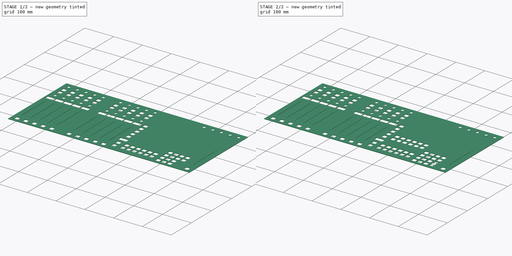
[diagram: build sequence overview — one tinted view per stage of 2, left to right]
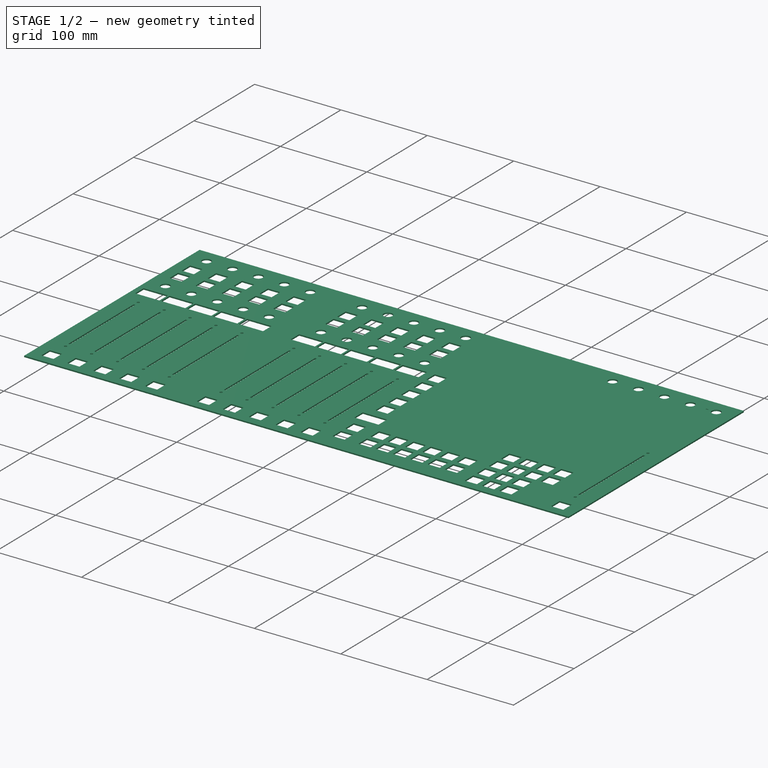
[diagram: stage 1 of 2 — iso view after this stage's code; geometry added in this stage tinted green]
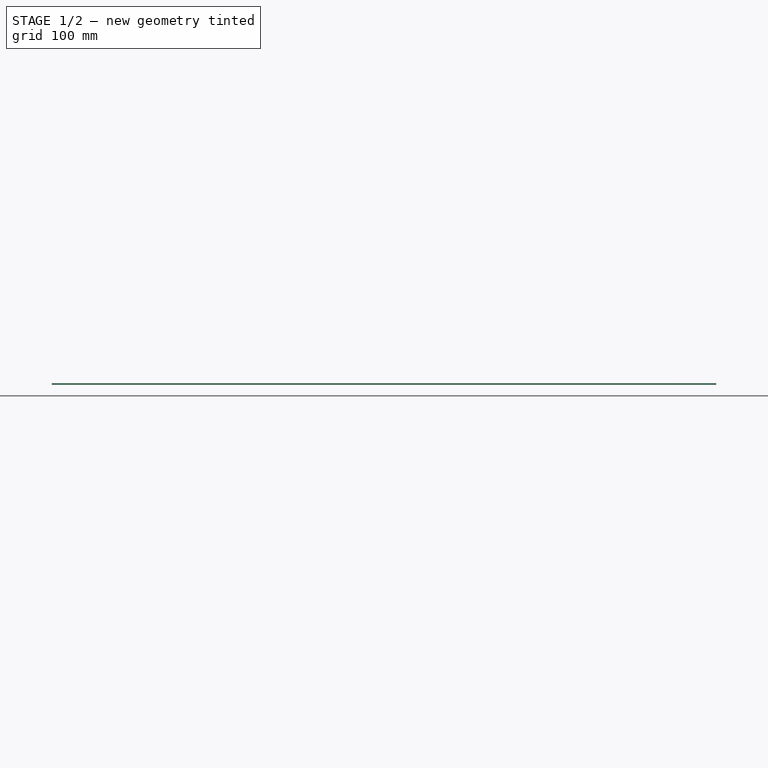
[diagram: stage 1 of 2 — front view after this stage's code; geometry added in this stage tinted green]
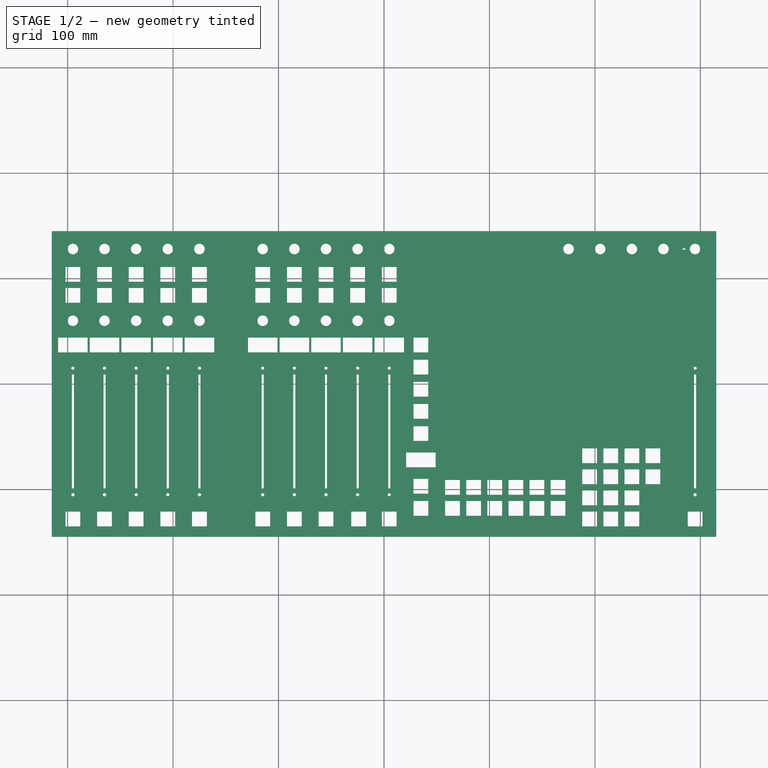
[diagram: stage 1 of 2 — top view after this stage's code; geometry added in this stage tinted green]
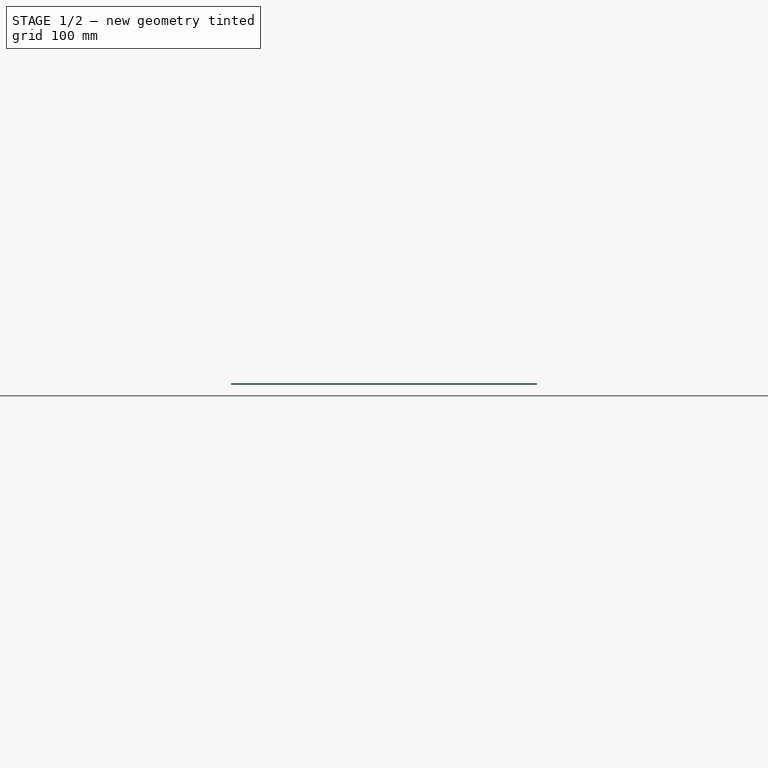
[diagram: stage 1 of 2 — right view after this stage's code; geometry added in this stage tinted green]
FCSTD DOCUMENT  (FreeCAD 0.21R33771 (Git))
Label: model-old
License: All rights reserved
LicenseURL: https://en.wikipedia.org/wiki/All_rights_reserved
objects: Sketcher::SketchObject×2, PartDesign::Pad×1, PartDesign::Pocket×1, PartDesign::Body×1
note: 7 computed .brp shape members not serialized (recipe doc carries the construction recipe); baked Part::Feature solids carry a one-line shape summary decoded from their .brp

FEATURE [Sketcher::SketchObject] Sketch
  FullyConstrained = true
  sketch-geometry (399):
    g0: LineSegment StartX=-315 StartY=145 StartZ=0 EndX=315 EndY=145 EndZ=0
    g1: LineSegment StartX=315 StartY=145 StartZ=0 EndX=315 EndY=-145 EndZ=0
    g2: LineSegment StartX=315 StartY=-145 StartZ=0 EndX=-315 EndY=-145 EndZ=0
    g3: LineSegment StartX=-315 StartY=-145 StartZ=0 EndX=-315 EndY=145 EndZ=0
    g4: Circle CenterX=-295 CenterY=128 CenterZ=0 NormalX=0 NormalY=0 NormalZ=1 AngleXU=0 Radius=5
    g5: LineSegment StartX=-302 StartY=111 StartZ=0 EndX=-288 EndY=111 EndZ=0
    g6: LineSegment StartX=-288 StartY=111 StartZ=0 EndX=-288 EndY=97 EndZ=0
    g7: LineSegment StartX=-288 StartY=97 StartZ=0 EndX=-302 EndY=97 EndZ=0
    g8: LineSegment StartX=-302 StartY=97 StartZ=0 EndX=-302 EndY=111 EndZ=0
    g9: Circle CenterX=-295 CenterY=60 CenterZ=0 NormalX=0 NormalY=0 NormalZ=1 AngleXU=0 Radius=5
    g10: LineSegment StartX=-309 StartY=44 StartZ=0 EndX=-281 EndY=44 EndZ=0
    g11: LineSegment StartX=-281 StartY=44 StartZ=0 EndX=-281 EndY=30 EndZ=0
    g12: LineSegment StartX=-281 StartY=30 StartZ=0 EndX=-309 EndY=30 EndZ=0
    g13: LineSegment StartX=-309 StartY=30 StartZ=0 EndX=-309 EndY=44 EndZ=0
    g14: Circle CenterX=-265 CenterY=128 CenterZ=0 NormalX=0 NormalY=0 NormalZ=1 AngleXU=0 Radius=5
    g15: Circle CenterX=-235 CenterY=128 CenterZ=0 NormalX=0 NormalY=0 NormalZ=1 AngleXU=0 Radius=5
    g16: Circle CenterX=-205 CenterY=128 CenterZ=0 NormalX=0 NormalY=0 NormalZ=1 AngleXU=0 Radius=5
    g17: Circle CenterX=-175 CenterY=128 CenterZ=0 NormalX=0 NormalY=0 NormalZ=1 AngleXU=0 Radius=5
    g18: LineSegment StartX=-182 StartY=111 StartZ=0 EndX=-168 EndY=111 EndZ=0
    g19: LineSegment StartX=-168 StartY=111 StartZ=0 EndX=-168 EndY=97 EndZ=0
    g20: LineSegment StartX=-168 StartY=97 StartZ=0 EndX=-182 EndY=97 EndZ=0
    g21: LineSegment StartX=-182 StartY=97 StartZ=0 EndX=-182 EndY=111 EndZ=0
    g22: LineSegment StartX=-182 StartY=91 StartZ=0 EndX=-168 EndY=91 EndZ=0
    g23: LineSegment StartX=-168 StartY=91 StartZ=0 EndX=-168 EndY=77 EndZ=0
    g24: LineSegment StartX=-168 StartY=77 StartZ=0 EndX=-182 EndY=77 EndZ=0
    g25: LineSegment StartX=-182 StartY=77 StartZ=0 EndX=-182 EndY=91 EndZ=0
    g26: LineSegment StartX=-189 StartY=44 StartZ=0 EndX=-161 EndY=44 EndZ=0
    g27: LineSegment StartX=-161 StartY=44 StartZ=0 EndX=-161 EndY=30 EndZ=0
    g28: LineSegment StartX=-161 StartY=30 StartZ=0 EndX=-189 EndY=30 EndZ=0
    g29: LineSegment StartX=-189 StartY=30 StartZ=0 EndX=-189 EndY=44 EndZ=0
    g30: Circle CenterX=-175 CenterY=60 CenterZ=0 NormalX=0 NormalY=0 NormalZ=1 AngleXU=0 Radius=5
    g31: Circle CenterX=-265 CenterY=60 CenterZ=0 NormalX=0 NormalY=0 NormalZ=1 AngleXU=0 Radius=5
    g32: Circle CenterX=-235 CenterY=60 CenterZ=0 NormalX=0 NormalY=0 NormalZ=1 AngleXU=0 Radius=5
    g33: Circle CenterX=-205 CenterY=60 CenterZ=0 NormalX=0 NormalY=0 NormalZ=1 AngleXU=0 Radius=5
    g34: Circle CenterX=-115 CenterY=60 CenterZ=0 NormalX=0 NormalY=0 NormalZ=1 AngleXU=0 Radius=5
    g35: Circle CenterX=-85 CenterY=60 CenterZ=0 NormalX=0 NormalY=0 NormalZ=1 AngleXU=0 Radius=5
    g36: Circle CenterX=-55 CenterY=60 CenterZ=0 NormalX=0 NormalY=0 NormalZ=1 AngleXU=0 Radius=5
    g37: Circle CenterX=-25 CenterY=60 CenterZ=0 NormalX=0 NormalY=0 NormalZ=1 AngleXU=0 Radius=5
    g38: Circle CenterX=5 CenterY=60 CenterZ=0 NormalX=0 NormalY=0 NormalZ=1 AngleXU=0 Radius=5
    g39: Circle CenterX=-115 CenterY=128 CenterZ=0 NormalX=0 NormalY=0 NormalZ=1 AngleXU=0 Radius=5
    g40: Circle CenterX=-85 CenterY=128 CenterZ=0 NormalX=0 NormalY=0 NormalZ=1 AngleXU=0 Radius=5
    g41: Circle CenterX=-55 CenterY=128 CenterZ=0 NormalX=0 NormalY=0 NormalZ=1 AngleXU=0 Radius=5
    g42: Circle CenterX=-25 CenterY=128 CenterZ=0 NormalX=0 NormalY=0 NormalZ=1 AngleXU=0 Radius=5
    g43: Circle CenterX=5 CenterY=128 CenterZ=0 NormalX=0 NormalY=0 NormalZ=1 AngleXU=0 Radius=5
    g44: LineSegment StartX=-122 StartY=111 StartZ=0 EndX=-108 EndY=111 EndZ=0
    g45: LineSegment StartX=-108 StartY=111 StartZ=0 EndX=-108 EndY=97 EndZ=0
    g46: LineSegment StartX=-108 StartY=97 StartZ=0 EndX=-122 EndY=97 EndZ=0
    g47: LineSegment StartX=-122 StartY=97 StartZ=0 EndX=-122 EndY=111 EndZ=0
    g48: LineSegment StartX=-122 StartY=91 StartZ=0 EndX=-108 EndY=91 EndZ=0
    g49: LineSegment StartX=-108 StartY=91 StartZ=0 EndX=-108 EndY=77 EndZ=0
    g50: LineSegment StartX=-108 StartY=77 StartZ=0 EndX=-122 EndY=77 EndZ=0
    g51: LineSegment StartX=-122 StartY=77 StartZ=0 EndX=-122 EndY=91 EndZ=0
    g52: LineSegment StartX=-92 StartY=111 StartZ=0 EndX=-78 EndY=111 EndZ=0
    g53: LineSegment StartX=-78 StartY=111 StartZ=0 EndX=-78 EndY=97 EndZ=0
    g54: LineSegment StartX=-78 StartY=97 StartZ=0 EndX=-92 EndY=97 EndZ=0
    g55: LineSegment StartX=-92 StartY=97 StartZ=0 EndX=-92 EndY=111 EndZ=0
    g56: LineSegment StartX=-92 StartY=91 StartZ=0 EndX=-78 EndY=91 EndZ=0
    g57: LineSegment StartX=-78 StartY=91 StartZ=0 EndX=-78 EndY=77 EndZ=0
    g58: LineSegment StartX=-78 StartY=77 StartZ=0 EndX=-92 EndY=77 EndZ=0
    g59: LineSegment StartX=-92 StartY=77 StartZ=0 EndX=-92 EndY=91 EndZ=0
    g60: LineSegment StartX=-62 StartY=111 StartZ=0 EndX=-48 EndY=111 EndZ=0
    g61: LineSegment StartX=-48 StartY=111 StartZ=0 EndX=-48 EndY=97 EndZ=0
    g62: LineSegment StartX=-48 StartY=97 StartZ=0 EndX=-62 EndY=97 EndZ=0
    g63: LineSegment StartX=-62 StartY=97 StartZ=0 EndX=-62 EndY=111 EndZ=0
    g64: LineSegment StartX=-62 StartY=91 StartZ=0 EndX=-48 EndY=91 EndZ=0
    g65: LineSegment StartX=-48 StartY=91 StartZ=0 EndX=-48 EndY=77 EndZ=0
    g66: LineSegment StartX=-48 StartY=77 StartZ=0 EndX=-62 EndY=77 EndZ=0
    g67: LineSegment StartX=-62 StartY=77 StartZ=0 EndX=-62 EndY=91 EndZ=0
    g68: LineSegment StartX=-32 StartY=111 StartZ=0 EndX=-18 EndY=111 EndZ=0
    g69: LineSegment StartX=-18 StartY=111 StartZ=0 EndX=-18 EndY=97 EndZ=0
    g70: LineSegment StartX=-18 StartY=97 StartZ=0 EndX=-32 EndY=97 EndZ=0
    g71: LineSegment StartX=-32 StartY=97 StartZ=0 EndX=-32 EndY=111 EndZ=0
    g72: LineSegment StartX=-32 StartY=91 StartZ=0 EndX=-18 EndY=91 EndZ=0
    g73: LineSegment StartX=-18 StartY=91 StartZ=0 EndX=-18 EndY=77 EndZ=0
    g74: LineSegment StartX=-18 StartY=77 StartZ=0 EndX=-32 EndY=77 EndZ=0
    g75: LineSegment StartX=-32 StartY=77 StartZ=0 EndX=-32 EndY=91 EndZ=0
    g76: LineSegment StartX=-2 StartY=111 StartZ=0 EndX=12 EndY=111 EndZ=0
    g77: LineSegment StartX=12 StartY=111 StartZ=0 EndX=12 EndY=97 EndZ=0
    g78: LineSegment StartX=12 StartY=97 StartZ=0 EndX=-2 EndY=97 EndZ=0
    g79: LineSegment StartX=-2 StartY=97 StartZ=0 EndX=-2 EndY=111 EndZ=0
    g80: LineSegment StartX=-2 StartY=91 StartZ=0 EndX=12 EndY=91 EndZ=0
    g81: LineSegment StartX=12 StartY=91 StartZ=0 EndX=12 EndY=77 EndZ=0
    g82: LineSegment StartX=12 StartY=77 StartZ=0 EndX=-2 EndY=77 EndZ=0
    g83: LineSegment StartX=-2 StartY=77 StartZ=0 EndX=-2 EndY=91 EndZ=0
    g84: LineSegment StartX=-129 StartY=44 StartZ=0 EndX=-101 EndY=44 EndZ=0
    g85: LineSegment StartX=-101 StartY=44 StartZ=0 EndX=-101 EndY=30 EndZ=0
    g86: LineSegment StartX=-101 StartY=30 StartZ=0 EndX=-129 EndY=30 EndZ=0
    g87: LineSegment StartX=-129 StartY=30 StartZ=0 EndX=-129 EndY=44 EndZ=0
    g88: LineSegment StartX=-99 StartY=44 StartZ=0 EndX=-71 EndY=44 EndZ=0
    g89: LineSegment StartX=-71 StartY=44 StartZ=0 EndX=-71 EndY=30 EndZ=0
    g90: LineSegment StartX=-71 StartY=30 StartZ=0 EndX=-99 EndY=30 EndZ=0
    g91: LineSegment StartX=-99 StartY=30 StartZ=0 EndX=-99 EndY=44 EndZ=0
    g92: LineSegment StartX=-69 StartY=44 StartZ=0 EndX=-41 EndY=44 EndZ=0
    g93: LineSegment StartX=-41 StartY=44 StartZ=0 EndX=-41 EndY=30 EndZ=0
    g94: LineSegment StartX=-41 StartY=30 StartZ=0 EndX=-69 EndY=30 EndZ=0
    g95: LineSegment StartX=-69 StartY=30 StartZ=0 EndX=-69 EndY=44 EndZ=0
    g96: LineSegment StartX=-39 StartY=44 StartZ=0 EndX=-11 EndY=44 EndZ=0
    g97: LineSegment StartX=-11 StartY=44 StartZ=0 EndX=-11 EndY=30 EndZ=0
    g98: LineSegment StartX=-11 StartY=30 StartZ=0 EndX=-39 EndY=30 EndZ=0
    g99: LineSegment StartX=-39 StartY=30 StartZ=0 EndX=-39 EndY=44 EndZ=0
    g100: LineSegment StartX=-9 StartY=44 StartZ=0 EndX=19 EndY=44 EndZ=0
    g101: LineSegment StartX=19 StartY=44 StartZ=0 EndX=19 EndY=30 EndZ=0
    g102: LineSegment StartX=19 StartY=30 StartZ=0 EndX=-9 EndY=30 EndZ=0
    g103: LineSegment StartX=-9 StartY=30 StartZ=0 EndX=-9 EndY=44 EndZ=0
    g104: LineSegment StartX=-272 StartY=111 StartZ=0 EndX=-258 EndY=111 EndZ=0
    g105: LineSegment StartX=-258 StartY=111 StartZ=0 EndX=-258 EndY=97 EndZ=0
    g106: LineSegment StartX=-258 StartY=97 StartZ=0 EndX=-272 EndY=97 EndZ=0
    g107: LineSegment StartX=-272 StartY=97 StartZ=0 EndX=-272 EndY=111 EndZ=0
    g108: LineSegment StartX=-242 StartY=111 StartZ=0 EndX=-228 EndY=111 EndZ=0
    g109: LineSegment StartX=-228 StartY=111 StartZ=0 EndX=-228 EndY=97 EndZ=0
    g110: LineSegment StartX=-228 StartY=97 StartZ=0 EndX=-242 EndY=97 EndZ=0
    g111: LineSegment StartX=-242 StartY=97 StartZ=0 EndX=-242 EndY=111 EndZ=0
    g112: LineSegment StartX=-212 StartY=111 StartZ=0 EndX=-198 EndY=111 EndZ=0
    g113: LineSegment StartX=-198 StartY=111 StartZ=0 EndX=-198 EndY=97 EndZ=0
    g114: LineSegment StartX=-198 StartY=97 StartZ=0 EndX=-212 EndY=97 EndZ=0
    g115: LineSegment StartX=-212 StartY=97 StartZ=0 EndX=-212 EndY=111 EndZ=0
    g116: LineSegment StartX=-272 StartY=91 StartZ=0 EndX=-258 EndY=91 EndZ=0
    g117: LineSegment StartX=-258 StartY=91 StartZ=0 EndX=-258 EndY=77 EndZ=0
    g118: LineSegment StartX=-258 StartY=77 StartZ=0 EndX=-272 EndY=77 EndZ=0
    g119: LineSegment StartX=-272 StartY=77 StartZ=0 EndX=-272 EndY=91 EndZ=0
    g120: LineSegment StartX=-242 StartY=91 StartZ=0 EndX=-228 EndY=91 EndZ=0
    g121: LineSegment StartX=-228 StartY=91 StartZ=0 EndX=-228 EndY=77 EndZ=0
    g122: LineSegment StartX=-228 StartY=77 StartZ=0 EndX=-242 EndY=77 EndZ=0
    g123: LineSegment StartX=-242 StartY=77 StartZ=0 EndX=-242 EndY=91 EndZ=0
    g124: LineSegment StartX=-212 StartY=91 StartZ=0 EndX=-198 EndY=91 EndZ=0
    g125: LineSegment StartX=-198 StartY=91 StartZ=0 EndX=-198 EndY=77 EndZ=0
    g126: LineSegment StartX=-198 StartY=77 StartZ=0 EndX=-212 EndY=77 EndZ=0
    g127: LineSegment StartX=-212 StartY=77 StartZ=0 EndX=-212 EndY=91 EndZ=0
    g128: LineSegment StartX=-279 StartY=44 StartZ=0 EndX=-251 EndY=44 EndZ=0
    g129: LineSegment StartX=-251 StartY=44 StartZ=0 EndX=-251 EndY=30 EndZ=0
    g130: LineSegment StartX=-251 StartY=30 StartZ=0 EndX=-279 EndY=30 EndZ=0
    g131: LineSegment StartX=-279 StartY=30 StartZ=0 EndX=-279 EndY=44 EndZ=0
    g132: LineSegment StartX=-249 StartY=44 StartZ=0 EndX=-221 EndY=44 EndZ=0
    g133: LineSegment StartX=-221 StartY=44 StartZ=0 EndX=-221 EndY=30 EndZ=0
    g134: LineSegment StartX=-221 StartY=30 StartZ=0 EndX=-249 EndY=30 EndZ=0
    g135: LineSegment StartX=-249 StartY=30 StartZ=0 EndX=-249 EndY=44 EndZ=0
    g136: LineSegment StartX=-219 StartY=44 StartZ=0 EndX=-191 EndY=44 EndZ=0
    g137: LineSegment StartX=-191 StartY=44 StartZ=0 EndX=-191 EndY=30 EndZ=0
    g138: LineSegment StartX=-191 StartY=30 StartZ=0 EndX=-219 EndY=30 EndZ=0
    g139: LineSegment StartX=-219 StartY=30 StartZ=0 EndX=-219 EndY=44 EndZ=0
    g140: LineSegment StartX=-302 StartY=91 StartZ=0 EndX=-288 EndY=91 EndZ=0
    g141: LineSegment StartX=-288 StartY=91 StartZ=0 EndX=-288 EndY=77 EndZ=0
    g142: LineSegment StartX=-288 StartY=77 StartZ=0 EndX=-302 EndY=77 EndZ=0
    g143: LineSegment StartX=-302 StartY=77 StartZ=0 EndX=-302 EndY=91 EndZ=0
    g144: LineSegment StartX=-302 StartY=-121 StartZ=0 EndX=-288 EndY=-121 EndZ=0
    g145: LineSegment StartX=-288 StartY=-121 StartZ=0 EndX=-288 EndY=-135 EndZ=0
    g146: LineSegment StartX=-288 StartY=-135 StartZ=0 EndX=-302 EndY=-135 EndZ=0
    g147: LineSegment StartX=-302 StartY=-135 StartZ=0 EndX=-302 EndY=-121 EndZ=0
    g148: LineSegment StartX=-272 StartY=-121 StartZ=0 EndX=-258 EndY=-121 EndZ=0
    g149: LineSegment StartX=-258 StartY=-121 StartZ=0 EndX=-258 EndY=-135 EndZ=0
    g150: LineSegment StartX=-258 StartY=-135 StartZ=0 EndX=-272 EndY=-135 EndZ=0
    g151: LineSegment StartX=-272 StartY=-135 StartZ=0 EndX=-272 EndY=-121 EndZ=0
    g152: LineSegment StartX=-242 StartY=-121 StartZ=0 EndX=-228 EndY=-121 EndZ=0
    g153: LineSegment StartX=-228 StartY=-121 StartZ=0 EndX=-228 EndY=-135 EndZ=0
    g154: LineSegment StartX=-228 StartY=-135 StartZ=0 EndX=-242 EndY=-135 EndZ=0
    g155: LineSegment StartX=-242 StartY=-135 StartZ=0 EndX=-242 EndY=-121 EndZ=0
    g156: LineSegment StartX=-212 StartY=-121 StartZ=0 EndX=-198 EndY=-121 EndZ=0
    g157: LineSegment StartX=-198 StartY=-121 StartZ=0 EndX=-198 EndY=-135 EndZ=0
    g158: LineSegment StartX=-198 StartY=-135 StartZ=0 EndX=-212 EndY=-135 EndZ=0
    g159: LineSegment StartX=-212 StartY=-135 StartZ=0 EndX=-212 EndY=-121 EndZ=0
    g160: LineSegment StartX=-182 StartY=-121 StartZ=0 EndX=-168 EndY=-121 EndZ=0
    g161: LineSegment StartX=-168 StartY=-121 StartZ=0 EndX=-168 EndY=-135 EndZ=0
    g162: LineSegment StartX=-168 StartY=-135 StartZ=0 EndX=-182 EndY=-135 EndZ=0
    g163: LineSegment StartX=-182 StartY=-135 StartZ=0 EndX=-182 EndY=-121 EndZ=0
    g164: LineSegment StartX=-122 StartY=-121 StartZ=0 EndX=-108 EndY=-121 EndZ=0
    g165: LineSegment StartX=-108 StartY=-121 StartZ=0 EndX=-108 EndY=-135 EndZ=0
    g166: LineSegment StartX=-108 StartY=-135 StartZ=0 EndX=-122 EndY=-135 EndZ=0
    g167: LineSegment StartX=-122 StartY=-135 StartZ=0 EndX=-122 EndY=-121 EndZ=0
    g168: LineSegment StartX=-92 StartY=-121 StartZ=0 EndX=-78 EndY=-121 EndZ=0
    g169: LineSegment StartX=-78 StartY=-121 StartZ=0 EndX=-78 EndY=-135 EndZ=0
    g170: LineSegment StartX=-78 StartY=-135 StartZ=0 EndX=-92 EndY=-135 EndZ=0
    g171: LineSegment StartX=-92 StartY=-135 StartZ=0 EndX=-92 EndY=-121 EndZ=0
    g172: LineSegment StartX=-62 StartY=-121 StartZ=0 EndX=-48 EndY=-121 EndZ=0
    g173: LineSegment StartX=-48 StartY=-121 StartZ=0 EndX=-48 EndY=-135 EndZ=0
    g174: LineSegment StartX=-48 StartY=-135 StartZ=0 EndX=-62 EndY=-135 EndZ=0
    g175: LineSegment StartX=-62 StartY=-135 StartZ=0 EndX=-62 EndY=-121 EndZ=0
    g176: LineSegment StartX=-31 StartY=-121 StartZ=0 EndX=-17 EndY=-121 EndZ=0
    g177: LineSegment StartX=-17 StartY=-121 StartZ=0 EndX=-17 EndY=-135 EndZ=0
    g178: LineSegment StartX=-17 StartY=-135 StartZ=0 EndX=-31 EndY=-135 EndZ=0
    g179: LineSegment StartX=-31 StartY=-135 StartZ=0 EndX=-31 EndY=-121 EndZ=0
    g180: LineSegment StartX=-2 StartY=-121 StartZ=0 EndX=12 EndY=-121 EndZ=0
    g181: LineSegment StartX=12 StartY=-121 StartZ=0 EndX=12 EndY=-135 EndZ=0
    g182: LineSegment StartX=12 StartY=-135 StartZ=0 EndX=-2 EndY=-135 EndZ=0
    g183: LineSegment StartX=-2 StartY=-135 StartZ=0 EndX=-2 EndY=-121 EndZ=0
    g184: Circle CenterX=-295 CenterY=15 CenterZ=0 NormalX=0 NormalY=0 NormalZ=1 AngleXU=0 Radius=1.5
    g185: LineSegment StartX=-296 StartY=9 StartZ=0 EndX=-294 EndY=9 EndZ=0
    g186: LineSegment StartX=-294 StartY=9 StartZ=0 EndX=-294 EndY=-99 EndZ=0
    g187: LineSegment StartX=-294 StartY=-99 StartZ=0 EndX=-296 EndY=-99 EndZ=0
    g188: LineSegment StartX=-296 StartY=-99 StartZ=0 EndX=-296 EndY=9 EndZ=0
    g189: Circle CenterX=-295 CenterY=-105 CenterZ=0 NormalX=0 NormalY=0 NormalZ=1 AngleXU=0 Radius=1.5
    g190: Circle CenterX=-265 CenterY=15 CenterZ=0 NormalX=0 NormalY=0 NormalZ=1 AngleXU=0 Radius=1.5
    g191: Circle CenterX=-235 CenterY=15 CenterZ=0 NormalX=0 NormalY=0 NormalZ=1 AngleXU=0 Radius=1.5
    g192: Circle CenterX=-205 CenterY=15 CenterZ=0 NormalX=0 NormalY=0 NormalZ=1 AngleXU=0 Radius=1.5
    g193: Circle CenterX=-175 CenterY=15 CenterZ=0 NormalX=0 NormalY=0 NormalZ=1 AngleXU=0 Radius=1.5
    g194: Circle CenterX=-265 CenterY=-105 CenterZ=0 NormalX=0 NormalY=0 NormalZ=1 AngleXU=0 Radius=1.5
    g195: Circle CenterX=-235 CenterY=-105 CenterZ=0 NormalX=0 NormalY=0 NormalZ=1 AngleXU=0 Radius=1.5
    g196: Circle CenterX=-205 CenterY=-105 CenterZ=0 NormalX=0 NormalY=0 NormalZ=1 AngleXU=0 Radius=1.5
    g197: Circle CenterX=-175 CenterY=-105 CenterZ=0 NormalX=0 NormalY=0 NormalZ=1 AngleXU=0 Radius=1.5
    g198: LineSegment StartX=-266 StartY=9 StartZ=0 EndX=-264 EndY=9 EndZ=0
    g199: LineSegment StartX=-264 StartY=9 StartZ=0 EndX=-264 EndY=-99 EndZ=0
    g200: LineSegment StartX=-264 StartY=-99 StartZ=0 EndX=-266 EndY=-99 EndZ=0
    g201: LineSegment StartX=-266 StartY=-99 StartZ=0 EndX=-266 EndY=9 EndZ=0
    g202: LineSegment StartX=-236 StartY=9 StartZ=0 EndX=-234 EndY=9 EndZ=0
    g203: LineSegment StartX=-234 StartY=9 StartZ=0 EndX=-234 EndY=-99 EndZ=0
    g204: LineSegment StartX=-234 StartY=-99 StartZ=0 EndX=-236 EndY=-99 EndZ=0
    g205: LineSegment StartX=-236 StartY=-99 StartZ=0 EndX=-236 EndY=9 EndZ=0
    g206: LineSegment StartX=-206 StartY=9 StartZ=0 EndX=-204 EndY=9 EndZ=0
    g207: LineSegment StartX=-204 StartY=9 StartZ=0 EndX=-204 EndY=-99 EndZ=0
    g208: LineSegment StartX=-204 StartY=-99 StartZ=0 EndX=-206 EndY=-99 EndZ=0
    g209: LineSegment StartX=-206 StartY=-99 StartZ=0 EndX=-206 EndY=9 EndZ=0
    g210: LineSegment StartX=-176 StartY=9 StartZ=0 EndX=-174 EndY=9 EndZ=0
    g211: LineSegment StartX=-174 StartY=9 StartZ=0 EndX=-174 EndY=-99 EndZ=0
    g212: LineSegment StartX=-174 StartY=-99 StartZ=0 EndX=-176 EndY=-99 EndZ=0
    g213: LineSegment StartX=-176 StartY=-99 StartZ=0 EndX=-176 EndY=9 EndZ=0
    g214: Circle CenterX=-115 CenterY=15 CenterZ=0 NormalX=0 NormalY=0 NormalZ=1 AngleXU=0 Radius=1.5
    g215: Circle CenterX=-85 CenterY=15 CenterZ=0 NormalX=0 NormalY=0 NormalZ=1 AngleXU=0 Radius=1.5
    g216: Circle CenterX=-55 CenterY=15 CenterZ=0 NormalX=0 NormalY=0 NormalZ=1 AngleXU=0 Radius=1.5
    g217: Circle CenterX=-25 CenterY=15 CenterZ=0 NormalX=0 NormalY=0 NormalZ=1 AngleXU=0 Radius=1.5
    g218: Circle CenterX=5 CenterY=15 CenterZ=0 NormalX=0 NormalY=0 NormalZ=1 AngleXU=0 Radius=1.5
    g219: Circle CenterX=-115 CenterY=-105 CenterZ=0 NormalX=0 NormalY=0 NormalZ=1 AngleXU=0 Radius=1.5
    g220: Circle CenterX=-85 CenterY=-105 CenterZ=0 NormalX=0 NormalY=0 NormalZ=1 AngleXU=0 Radius=1.5
    g221: Circle CenterX=-55 CenterY=-105 CenterZ=0 NormalX=0 NormalY=0 NormalZ=1 AngleXU=0 Radius=1.5
    g222: Circle CenterX=-25 CenterY=-105 CenterZ=0 NormalX=0 NormalY=0 NormalZ=1 AngleXU=0 Radius=1.5
    g223: Circle CenterX=5 CenterY=-105 CenterZ=0 NormalX=0 NormalY=0 NormalZ=1 AngleXU=0 Radius=1.5
    g224: LineSegment StartX=-116 StartY=9 StartZ=0 EndX=-114 EndY=9 EndZ=0
    g225: LineSegment StartX=-114 StartY=9 StartZ=0 EndX=-114 EndY=-99 EndZ=0
    g226: LineSegment StartX=-114 StartY=-99 StartZ=0 EndX=-116 EndY=-99 EndZ=0
    g227: LineSegment StartX=-116 StartY=-99 StartZ=0 EndX=-116 EndY=9 EndZ=0
    g228: LineSegment StartX=-86 StartY=9 StartZ=0 EndX=-84 EndY=9 EndZ=0
    g229: LineSegment StartX=-84 StartY=9 StartZ=0 EndX=-84 EndY=-99 EndZ=0
    g230: LineSegment StartX=-84 StartY=-99 StartZ=0 EndX=-86 EndY=-99 EndZ=0
    g231: LineSegment StartX=-86 StartY=-99 StartZ=0 EndX=-86 EndY=9 EndZ=0
    g232: LineSegment StartX=-56 StartY=-99 StartZ=0 EndX=-54 EndY=-99 EndZ=0
    g233: LineSegment StartX=-54 StartY=-99 StartZ=0 EndX=-54 EndY=9 EndZ=0
    g234: LineSegment StartX=-54 StartY=9 StartZ=0 EndX=-56 EndY=9 EndZ=0
    g235: LineSegment StartX=-56 StartY=9 StartZ=0 EndX=-56 EndY=-99 EndZ=0
    g236: LineSegment StartX=-26 StartY=9 StartZ=0 EndX=-24 EndY=9 EndZ=0
    g237: LineSegment StartX=-24 StartY=9 StartZ=0 EndX=-24 EndY=-99 EndZ=0
    g238: LineSegment StartX=-24 StartY=-99 StartZ=0 EndX=-26 EndY=-99 EndZ=0
    g239: LineSegment StartX=-26 StartY=-99 StartZ=0 EndX=-26 EndY=9 EndZ=0
    g240: LineSegment StartX=4 StartY=9 StartZ=0 EndX=6 EndY=9 EndZ=0
    g241: LineSegment StartX=6 StartY=9 StartZ=0 EndX=6 EndY=-99 EndZ=0
    g242: LineSegment StartX=6 StartY=-99 StartZ=0 EndX=4 EndY=-99 EndZ=0
    g243: LineSegment StartX=4 StartY=-99 StartZ=0 EndX=4 EndY=9 EndZ=0
    g244: Circle CenterX=175 CenterY=128 CenterZ=0 NormalX=0 NormalY=0 NormalZ=1 AngleXU=0 Radius=5
    g245: Circle CenterX=205 CenterY=128 CenterZ=0 NormalX=0 NormalY=0 NormalZ=1 AngleXU=0 Radius=5
    g246: Circle CenterX=235 CenterY=128 CenterZ=0 NormalX=0 NormalY=0 NormalZ=1 AngleXU=0 Radius=5
    g247: Circle CenterX=265 CenterY=128 CenterZ=0 NormalX=0 NormalY=0 NormalZ=1 AngleXU=0 Radius=5
    g248: Circle CenterX=295 CenterY=128 CenterZ=0 NormalX=0 NormalY=0 NormalZ=1 AngleXU=0 Radius=5
    g249: LineSegment StartX=288 StartY=-121 StartZ=0 EndX=302 EndY=-121 EndZ=0
    g250: LineSegment StartX=302 StartY=-121 StartZ=0 EndX=302 EndY=-135 EndZ=0
    g251: LineSegment StartX=302 StartY=-135 StartZ=0 EndX=288 EndY=-135 EndZ=0
    g252: LineSegment StartX=288 StartY=-135 StartZ=0 EndX=288 EndY=-121 EndZ=0
    g253: LineSegment StartX=294 StartY=-99 StartZ=0 EndX=296 EndY=-99 EndZ=0
    g254: LineSegment StartX=296 StartY=-99 StartZ=0 EndX=296 EndY=9 EndZ=0
    g255: LineSegment StartX=296 StartY=9 StartZ=0 EndX=294 EndY=9 EndZ=0
    g256: LineSegment StartX=294 StartY=9 StartZ=0 EndX=294 EndY=-99 EndZ=0
    g257: Circle CenterX=295 CenterY=15 CenterZ=0 NormalX=0 NormalY=0 NormalZ=1 AngleXU=0 Radius=1.5
    g258: Circle CenterX=295 CenterY=-105 CenterZ=0 NormalX=0 NormalY=0 NormalZ=1 AngleXU=0 Radius=1.5
    g259: LineSegment StartX=28 StartY=-111 StartZ=0 EndX=42 EndY=-111 EndZ=0
    g260: LineSegment StartX=42 StartY=-111 StartZ=0 EndX=42 EndY=-125 EndZ=0
    g261: LineSegment StartX=42 StartY=-125 StartZ=0 EndX=28 EndY=-125 EndZ=0
    g262: LineSegment StartX=28 StartY=-125 StartZ=0 EndX=28 EndY=-111 EndZ=0
    g263: LineSegment StartX=28 StartY=-90 StartZ=0 EndX=42 EndY=-90 EndZ=0
    g264: LineSegment StartX=42 StartY=-90 StartZ=0 EndX=42 EndY=-104 EndZ=0
    g265: LineSegment StartX=42 StartY=-104 StartZ=0 EndX=28 EndY=-104 EndZ=0
    g266: LineSegment StartX=28 StartY=-104 StartZ=0 EndX=28 EndY=-90 EndZ=0
    g267: LineSegment StartX=21 StartY=-65 StartZ=0 EndX=49 EndY=-65 EndZ=0
    g268: LineSegment StartX=49 StartY=-65 StartZ=0 EndX=49 EndY=-79 EndZ=0
    g269: LineSegment StartX=49 StartY=-79 StartZ=0 EndX=21 EndY=-79 EndZ=0
    g270: LineSegment StartX=21 StartY=-79 StartZ=0 EndX=21 EndY=-65 EndZ=0
    g271: LineSegment StartX=28 StartY=-40 StartZ=0 EndX=42 EndY=-40 EndZ=0
    g272: LineSegment StartX=42 StartY=-40 StartZ=0 EndX=42 EndY=-54 EndZ=0
    g273: LineSegment StartX=42 StartY=-54 StartZ=0 EndX=28 EndY=-54 EndZ=0
    g274: LineSegment StartX=28 StartY=-54 StartZ=0 EndX=28 EndY=-40 EndZ=0
    g275: LineSegment StartX=28 StartY=-19 StartZ=0 EndX=42 EndY=-19 EndZ=0
    g276: LineSegment StartX=42 StartY=-19 StartZ=0 EndX=42 EndY=-33 EndZ=0
    g277: LineSegment StartX=42 StartY=-33 StartZ=0 EndX=28 EndY=-33 EndZ=0
    g278: LineSegment StartX=28 StartY=-33 StartZ=0 EndX=28 EndY=-19 EndZ=0
    g279: LineSegment StartX=28 StartY=2 StartZ=0 EndX=42 EndY=2 EndZ=0
    g280: LineSegment StartX=42 StartY=2 StartZ=0 EndX=42 EndY=-12 EndZ=0
    g281: LineSegment StartX=42 StartY=-12 StartZ=0 EndX=28 EndY=-12 EndZ=0
    g282: LineSegment StartX=28 StartY=-12 StartZ=0 EndX=28 EndY=2 EndZ=0
    g283: LineSegment StartX=28 StartY=23 StartZ=0 EndX=42 EndY=23 EndZ=0
    g284: LineSegment StartX=42 StartY=23 StartZ=0 EndX=42 EndY=9 EndZ=0
    g285: LineSegment StartX=42 StartY=9 StartZ=0 EndX=28 EndY=9 EndZ=0
    g286: LineSegment StartX=28 StartY=9 StartZ=0 EndX=28 EndY=23 EndZ=0
    g287: LineSegment StartX=28 StartY=44 StartZ=0 EndX=42 EndY=44 EndZ=0
    g288: LineSegment StartX=42 StartY=44 StartZ=0 EndX=42 EndY=30 EndZ=0
    g289: LineSegment StartX=42 StartY=30 StartZ=0 EndX=28 EndY=30 EndZ=0
    g290: LineSegment StartX=28 StartY=30 StartZ=0 EndX=28 EndY=44 EndZ=0
    g291: LineSegment StartX=283 StartY=128.5 StartZ=0 EndX=286 EndY=128.5 EndZ=0
    g292: LineSegment StartX=286 StartY=128.5 StartZ=0 EndX=286 EndY=127.5 EndZ=0
    g293: LineSegment StartX=286 StartY=127.5 StartZ=0 EndX=283 EndY=127.5 EndZ=0
    g294: LineSegment StartX=283 StartY=127.5 StartZ=0 EndX=283 EndY=128.5 EndZ=0
    g295: LineSegment StartX=58 StartY=-111 StartZ=0 EndX=72 EndY=-111 EndZ=0
    g296: LineSegment StartX=72 StartY=-111 StartZ=0 EndX=72 EndY=-125 EndZ=0
    g297: LineSegment StartX=72 StartY=-125 StartZ=0 EndX=58 EndY=-125 EndZ=0
    g298: LineSegment StartX=58 StartY=-125 StartZ=0 EndX=58 EndY=-111 EndZ=0
    g299: LineSegment StartX=78 StartY=-111 StartZ=0 EndX=92 EndY=-111 EndZ=0
    g300: LineSegment StartX=92 StartY=-111 StartZ=0 EndX=92 EndY=-125 EndZ=0
    g301: LineSegment StartX=92 StartY=-125 StartZ=0 EndX=78 EndY=-125 EndZ=0
    g302: LineSegment StartX=78 StartY=-125 StartZ=0 EndX=78 EndY=-111 EndZ=0
    g303: LineSegment StartX=98 StartY=-111 StartZ=0 EndX=112 EndY=-111 EndZ=0
    g304: LineSegment StartX=112 StartY=-111 StartZ=0 EndX=112 EndY=-125 EndZ=0
    g305: LineSegment StartX=112 StartY=-125 StartZ=0 EndX=98 EndY=-125 EndZ=0
    g306: LineSegment StartX=98 StartY=-125 StartZ=0 EndX=98 EndY=-111 EndZ=0
    g307: LineSegment StartX=118 StartY=-111 StartZ=0 EndX=132 EndY=-111 EndZ=0
    g308: LineSegment StartX=132 StartY=-111 StartZ=0 EndX=132 EndY=-125 EndZ=0
    g309: LineSegment StartX=132 StartY=-125 StartZ=0 EndX=118 EndY=-125 EndZ=0
    g310: LineSegment StartX=118 StartY=-125 StartZ=0 EndX=118 EndY=-111 EndZ=0
    g311: LineSegment StartX=138 StartY=-111 StartZ=0 EndX=152 EndY=-111 EndZ=0
    g312: LineSegment StartX=152 StartY=-111 StartZ=0 EndX=152 EndY=-125 EndZ=0
    g313: LineSegment StartX=152 StartY=-125 StartZ=0 EndX=138 EndY=-125 EndZ=0
    g314: LineSegment StartX=138 StartY=-125 StartZ=0 EndX=138 EndY=-111 EndZ=0
    g315: LineSegment StartX=158 StartY=-111 StartZ=0 EndX=172 EndY=-111 EndZ=0
    g316: LineSegment StartX=172 StartY=-111 StartZ=0 EndX=172 EndY=-125 EndZ=0
    g317: LineSegment StartX=172 StartY=-125 StartZ=0 EndX=158 EndY=-125 EndZ=0
    g318: LineSegment StartX=158 StartY=-125 StartZ=0 EndX=158 EndY=-111 EndZ=0
    g319: LineSegment StartX=58 StartY=-91 StartZ=0 EndX=72 EndY=-91 EndZ=0
    g320: LineSegment StartX=72 StartY=-91 StartZ=0 EndX=72 EndY=-105 EndZ=0
    g321: LineSegment StartX=72 StartY=-105 StartZ=0 EndX=58 EndY=-105 EndZ=0
    g322: LineSegment StartX=58 StartY=-105 StartZ=0 EndX=58 EndY=-91 EndZ=0
    g323: LineSegment StartX=78 StartY=-91 StartZ=0 EndX=92 EndY=-91 EndZ=0
    g324: LineSegment StartX=92 StartY=-91 StartZ=0 EndX=92 EndY=-105 EndZ=0
    g325: LineSegment StartX=92 StartY=-105 StartZ=0 EndX=78 EndY=-105 EndZ=0
    g326: LineSegment StartX=78 StartY=-105 StartZ=0 EndX=78 EndY=-91 EndZ=0
    g327: LineSegment StartX=98 StartY=-91 StartZ=0 EndX=112 EndY=-91 EndZ=0
    g328: LineSegment StartX=112 StartY=-91 StartZ=0 EndX=112 EndY=-105 EndZ=0
    g329: LineSegment StartX=112 StartY=-105 StartZ=0 EndX=98 EndY=-105 EndZ=0
    g330: LineSegment StartX=98 StartY=-105 StartZ=0 EndX=98 EndY=-91 EndZ=0
    g331: LineSegment StartX=118 StartY=-91 StartZ=0 EndX=132 EndY=-91 EndZ=0
    g332: LineSegment StartX=132 StartY=-91 StartZ=0 EndX=132 EndY=-105 EndZ=0
    g333: LineSegment StartX=132 StartY=-105 StartZ=0 EndX=118 EndY=-105 EndZ=0
    g334: LineSegment StartX=118 StartY=-105 StartZ=0 EndX=118 EndY=-91 EndZ=0
    g335: LineSegment StartX=138 StartY=-91 StartZ=0 EndX=152 EndY=-91 EndZ=0
    g336: LineSegment StartX=152 StartY=-91 StartZ=0 EndX=152 EndY=-105 EndZ=0
    g337: LineSegment StartX=152 StartY=-105 StartZ=0 EndX=138 EndY=-105 EndZ=0
    g338: LineSegment StartX=138 StartY=-105 StartZ=0 EndX=138 EndY=-91 EndZ=0
    g339: LineSegment StartX=158 StartY=-91 StartZ=0 EndX=172 EndY=-91 EndZ=0
    g340: LineSegment StartX=172 StartY=-91 StartZ=0 EndX=172 EndY=-105 EndZ=0
    g341: LineSegment StartX=172 StartY=-105 StartZ=0 EndX=158 EndY=-105 EndZ=0
    g342: LineSegment StartX=158 StartY=-105 StartZ=0 EndX=158 EndY=-91 EndZ=0
    g343: LineSegment StartX=188 StartY=-61 StartZ=0 EndX=202 EndY=-61 EndZ=0
    g344: LineSegment StartX=202 StartY=-61 StartZ=0 EndX=202 EndY=-75 EndZ=0
    g345: LineSegment StartX=202 StartY=-75 StartZ=0 EndX=188 EndY=-75 EndZ=0
    g346: LineSegment StartX=188 StartY=-75 StartZ=0 EndX=188 EndY=-61 EndZ=0
    g347: LineSegment StartX=208 StartY=-61 StartZ=0 EndX=222 EndY=-61 EndZ=0
    g348: LineSegment StartX=222 StartY=-61 StartZ=0 EndX=222 EndY=-75 EndZ=0
    g349: LineSegment StartX=222 StartY=-75 StartZ=0 EndX=208 EndY=-75 EndZ=0
    g350: LineSegment StartX=208 StartY=-75 StartZ=0 EndX=208 EndY=-61 EndZ=0
    g351: LineSegment StartX=228 StartY=-61 StartZ=0 EndX=242 EndY=-61 EndZ=0
    g352: LineSegment StartX=242 StartY=-61 StartZ=0 EndX=242 EndY=-75 EndZ=0
    g353: LineSegment StartX=242 StartY=-75 StartZ=0 EndX=228 EndY=-75 EndZ=0
    g354: LineSegment StartX=228 StartY=-75 StartZ=0 EndX=228 EndY=-61 EndZ=0
    g355: LineSegment StartX=248 StartY=-61 StartZ=0 EndX=262 EndY=-61 EndZ=0
    g356: LineSegment StartX=262 StartY=-61 StartZ=0 EndX=262 EndY=-75 EndZ=0
    g357: LineSegment StartX=262 StartY=-75 StartZ=0 EndX=248 EndY=-75 EndZ=0
    g358: LineSegment StartX=248 StartY=-75 StartZ=0 EndX=248 EndY=-61 EndZ=0
    g359: LineSegment StartX=188 StartY=-81 StartZ=0 EndX=202 EndY=-81 EndZ=0
    g360: LineSegment StartX=202 StartY=-81 StartZ=0 EndX=202 EndY=-95 EndZ=0
    g361: LineSegment StartX=202 StartY=-95 StartZ=0 EndX=188 EndY=-95 EndZ=0
    g362: LineSegment StartX=188 StartY=-95 StartZ=0 EndX=188 EndY=-81 EndZ=0
    g363: LineSegment StartX=208 StartY=-81 StartZ=0 EndX=222 EndY=-81 EndZ=0
    g364: LineSegment StartX=222 StartY=-81 StartZ=0 EndX=222 EndY=-95 EndZ=0
    g365: LineSegment StartX=222 StartY=-95 StartZ=0 EndX=208 EndY=-95 EndZ=0
    g366: LineSegment StartX=208 StartY=-95 StartZ=0 EndX=208 EndY=-81 EndZ=0
    g367: LineSegment StartX=228 StartY=-81 StartZ=0 EndX=242 EndY=-81 EndZ=0
    g368: LineSegment StartX=242 StartY=-81 StartZ=0 EndX=242 EndY=-95 EndZ=0
    g369: LineSegment StartX=242 StartY=-95 StartZ=0 EndX=228 EndY=-95 EndZ=0
    g370: LineSegment StartX=228 StartY=-95 StartZ=0 EndX=228 EndY=-81 EndZ=0
    g371: LineSegment StartX=248 StartY=-81 StartZ=0 EndX=262 EndY=-81 EndZ=0
    g372: LineSegment StartX=262 StartY=-81 StartZ=0 EndX=262 EndY=-95 EndZ=0
    g373: LineSegment StartX=262 StartY=-95 StartZ=0 EndX=248 EndY=-95 EndZ=0
    g374: LineSegment StartX=248 StartY=-95 StartZ=0 EndX=248 EndY=-81 EndZ=0
    g375: LineSegment StartX=188 StartY=-101 StartZ=0 EndX=202 EndY=-101 EndZ=0
    g376: LineSegment StartX=202 StartY=-101 StartZ=0 EndX=202 EndY=-115 EndZ=0
    g377: LineSegment StartX=202 StartY=-115 StartZ=0 EndX=188 EndY=-115 EndZ=0
    g378: LineSegment StartX=188 StartY=-115 StartZ=0 EndX=188 EndY=-101 EndZ=0
    g379: LineSegment StartX=208 StartY=-101 StartZ=0 EndX=222 EndY=-101 EndZ=0
    g380: LineSegment StartX=222 StartY=-101 StartZ=0 EndX=222 EndY=-115 EndZ=0
    g381: LineSegment StartX=222 StartY=-115 StartZ=0 EndX=208 EndY=-115 EndZ=0
    g382: LineSegment StartX=208 StartY=-115 StartZ=0 EndX=208 EndY=-101 EndZ=0
    g383: LineSegment StartX=228 StartY=-101 StartZ=0 EndX=242 EndY=-101 EndZ=0
    g384: LineSegment StartX=242 StartY=-101 StartZ=0 EndX=242 EndY=-115 EndZ=0
    g385: LineSegment StartX=242 StartY=-115 StartZ=0 EndX=228 EndY=-115 EndZ=0
    g386: LineSegment StartX=228 StartY=-115 StartZ=0 EndX=228 EndY=-101 EndZ=0
    g387: LineSegment StartX=188 StartY=-121 StartZ=0 EndX=202 EndY=-121 EndZ=0
    g388: LineSegment StartX=202 StartY=-121 StartZ=0 EndX=202 EndY=-135 EndZ=0
    g389: LineSegment StartX=202 StartY=-135 StartZ=0 EndX=188 EndY=-135 EndZ=0
    g390: LineSegment StartX=188 StartY=-135 StartZ=0 EndX=188 EndY=-121 EndZ=0
    g391: LineSegment StartX=208 StartY=-121 StartZ=0 EndX=222 EndY=-121 EndZ=0
    g392: LineSegment StartX=222 StartY=-121 StartZ=0 EndX=222 EndY=-135 EndZ=0
    g393: LineSegment StartX=222 StartY=-135 StartZ=0 EndX=208 EndY=-135 EndZ=0
    g394: LineSegment StartX=208 StartY=-135 StartZ=0 EndX=208 EndY=-121 EndZ=0
    g395: LineSegment StartX=228 StartY=-121 StartZ=0 EndX=242 EndY=-121 EndZ=0
    g396: LineSegment StartX=242 StartY=-121 StartZ=0 EndX=242 EndY=-135 EndZ=0
    g397: LineSegment StartX=242 StartY=-135 StartZ=0 EndX=228 EndY=-135 EndZ=0
    g398: LineSegment StartX=228 StartY=-135 StartZ=0 EndX=228 EndY=-121 EndZ=0
  constraints (1197):
    c: Coincident(g0,g1)
    c: Coincident(g1,g2)
    c: Coincident(g2,g3)
    c: Coincident(g3,g0)
    c: Horizontal(g0)
    c: Horizontal(g2)
    c: Vertical(g1)
    c: Vertical(g3)
    c: DistanceY(g2,g0) = 290
    c: DistanceX(g0,g0) = 630
    c: DistanceY(g-1,g0) = 145
    c: DistanceX(g-1,g0) = 315
    c: Diameter(g4) = 10
    c: DistanceY(g4,g0) = 17
    c: DistanceX(g0,g4) = 20
    c: Coincident(g5,g6)
    c: Coincident(g6,g7)
    c: Coincident(g7,g8)
    c: Coincident(g8,g5)
    c: Horizontal(g5)
    c: Horizontal(g7)
    c: Vertical(g6)
    c: Vertical(g8)
    c: DistanceX(g5,g5) = 14
    c: Diameter(g9) = 10
    c: Coincident(g10,g11)
    c: Coincident(g11,g12)
    c: Coincident(g12,g13)
    c: Coincident(g13,g10)
    c: Horizontal(g10)
    c: Horizontal(g12)
    c: Vertical(g11)
    c: Vertical(g13)
    c: DistanceX(g10,g10) = 28
    c: Diameter(g14) = 10
    c: Diameter(g15) = 10
    c: Diameter(g16) = 10
    c: DistanceX(g4,g14) = 30
    c: DistanceX(g14,g15) = 30
    c: DistanceX(g15,g16) = 30
    c: Diameter(g17) = 10
    c: DistanceX(g16,g17) = 30
    c: Coincident(g18,g19)
    c: Coincident(g19,g20)
    c: Coincident(g20,g21)
    c: Coincident(g21,g18)
    c: Horizontal(g18)
    c: Horizontal(g20)
    c: Vertical(g19)
    c: Vertical(g21)
    c: Coincident(g22,g23)
    c: Coincident(g23,g24)
    c: Coincident(g24,g25)
    c: Coincident(g25,g22)
    c: Horizontal(g22)
    c: Horizontal(g24)
    c: Vertical(g23)
    c: Vertical(g25)
    c: Coincident(g26,g27)
    c: Coincident(g27,g28)
    c: Coincident(g28,g29)
    c: Coincident(g29,g26)
    c: Horizontal(g26)
    c: Horizontal(g28)
    c: Vertical(g27)
    c: Vertical(g29)
    c: Diameter(g30) = 10
    c: Coincident(g44,g45)
    c: Coincident(g45,g46)
    c: Coincident(g46,g47)
    c: Coincident(g47,g44)
    c: Horizontal(g44)
    c: Horizontal(g46)
    c: Vertical(g45)
    c: Vertical(g47)
    c: Coincident(g48,g49)
    c: Coincident(g49,g50)
    c: Coincident(g50,g51)
    c: Coincident(g51,g48)
    c: Horizontal(g48)
    c: Horizontal(g50)
    c: Vertical(g49)
    c: Vertical(g51)
    c: Coincident(g52,g53)
    c: Coincident(g53,g54)
    c: Coincident(g54,g55)
    c: Coincident(g55,g52)
    c: Horizontal(g52)
    c: Horizontal(g54)
    c: Vertical(g53)
    c: Vertical(g55)
    c: Coincident(g56,g57)
    c: Coincident(g57,g58)
    c: Coincident(g58,g59)
    c: Coincident(g59,g56)
    c: Horizontal(g56)
    c: Horizontal(g58)
    c: Vertical(g57)
    c: Vertical(g59)
    c: Coincident(g60,g61)
    c: Coincident(g61,g62)
    c: Coincident(g62,g63)
    c: Coincident(g63,g60)
    c: Horizontal(g60)
    c: Horizontal(g62)
    c: Vertical(g61)
    c: Vertical(g63)
    c: Coincident(g64,g65)
    c: Coincident(g65,g66)
    c: Coincident(g66,g67)
    c: Coincident(g67,g64)
    c: Horizontal(g64)
    c: Horizontal(g66)
    c: Vertical(g65)
    c: Vertical(g67)
    c: Coincident(g68,g69)
    c: Coincident(g69,g70)
    c: Coincident(g70,g71)
    c: Coincident(g71,g68)
    c: Horizontal(g68)
    c: Horizontal(g70)
    c: Vertical(g69)
    c: Vertical(g71)
    c: Coincident(g72,g73)
    c: Coincident(g73,g74)
    c: Coincident(g74,g75)
    c: Coincident(g75,g72)
    c: Horizontal(g72)
    c: Horizontal(g74)
    c: Vertical(g73)
    c: Vertical(g75)
    c: Coincident(g76,g77)
    c: Coincident(g77,g78)
    c: Coincident(g78,g79)
    c: Coincident(g79,g76)
    c: Horizontal(g76)
    c: Horizontal(g78)
    c: Vertical(g77)
    c: Vertical(g79)
    c: Coincident(g80,g81)
    c: Coincident(g81,g82)
    c: Coincident(g82,g83)
    c: Coincident(g83,g80)
    c: Horizontal(g80)
    c: Horizontal(g82)
    c: Vertical(g81)
    c: Vertical(g83)
    c: Coincident(g84,g85)
    c: Coincident(g85,g86)
    c: Coincident(g86,g87)
    c: Coincident(g87,g84)
    c: Horizontal(g84)
    c: Horizontal(g86)
    c: Vertical(g85)
    c: Vertical(g87)
    c: Coincident(g88,g89)
    c: Coincident(g89,g90)
    c: Coincident(g90,g91)
    c: Coincident(g91,g88)
    c: Horizontal(g88)
    c: Horizontal(g90)
    c: Vertical(g89)
    c: Vertical(g91)
    c: Coincident(g92,g93)
    c: Coincident(g93,g94)
    c: Coincident(g94,g95)
    c: Coincident(g95,g92)
    c: Horizontal(g92)
    c: Horizontal(g94)
    c: Vertical(g93)
    c: Vertical(g95)
    c: Coincident(g96,g97)
    c: Coincident(g97,g98)
    c: Coincident(g98,g99)
    c: Coincident(g99,g96)
    c: Horizontal(g96)
    c: Horizontal(g98)
    c: Vertical(g97)
    c: Vertical(g99)
    c: Coincident(g100,g101)
    c: Coincident(g101,g102)
    c: Coincident(g102,g103)
    c: Coincident(g103,g100)
    c: Horizontal(g100)
    c: Horizontal(g102)
    c: Vertical(g101)
    c: Vertical(g103)
    c: Coincident(g104,g105)
    c: Coincident(g105,g106)
    c: Coincident(g106,g107)
    c: Coincident(g107,g104)
    c: Horizontal(g104)
    c: Horizontal(g106)
    c: Vertical(g105)
    c: Vertical(g107)
    c: Coincident(g108,g109)
    c: Coincident(g109,g110)
    c: Coincident(g110,g111)
    c: Coincident(g111,g108)
    c: Horizontal(g108)
    c: Horizontal(g110)
    c: Vertical(g109)
    c: Vertical(g111)
    c: Coincident(g112,g113)
    c: Coincident(g113,g114)
    c: Coincident(g114,g115)
    c: Coincident(g115,g112)
    c: Horizontal(g112)
    c: Horizontal(g114)
    c: Vertical(g113)
    c: Vertical(g115)
    c: Coincident(g116,g117)
    c: Coincident(g117,g118)
    c: Coincident(g118,g119)
    c: Coincident(g119,g116)
    c: Horizontal(g116)
    c: Horizontal(g118)
    c: Vertical(g117)
    c: Vertical(g119)
    c: Coincident(g120,g121)
    c: Coincident(g121,g122)
    c: Coincident(g122,g123)
    c: Coincident(g123,g120)
    c: Horizontal(g120)
    c: Horizontal(g122)
    c: Vertical(g121)
    c: Vertical(g123)
    c: Coincident(g124,g125)
    c: Coincident(g125,g126)
    c: Coincident(g126,g127)
    c: Coincident(g127,g124)
    c: Horizontal(g124)
    c: Horizontal(g126)
    c: Vertical(g125)
    c: Vertical(g127)
    c: Coincident(g128,g129)
    c: Coincident(g129,g130)
    c: Coincident(g130,g131)
    c: Coincident(g131,g128)
    c: Horizontal(g128)
    c: Horizontal(g130)
    c: Vertical(g129)
    c: Vertical(g131)
    c: Coincident(g132,g133)
    c: Coincident(g133,g134)
    c: Coincident(g134,g135)
    c: Coincident(g135,g132)
    c: Horizontal(g132)
    c: Horizontal(g134)
    c: Vertical(g133)
    c: Vertical(g135)
    c: Coincident(g136,g137)
    c: Coincident(g137,g138)
    c: Coincident(g138,g139)
    c: Coincident(g139,g136)
    c: Horizontal(g136)
    c: Horizontal(g138)
    c: Vertical(g137)
    c: Vertical(g139)
    c: DistanceY(g7,g5) = 14
    c: Coincident(g140,g141)
    c: Coincident(g141,g142)
    c: Coincident(g142,g143)
    c: Coincident(g143,g140)
    c: Horizontal(g140)
    c: Horizontal(g142)
    c: Vertical(g141)
    c: Vertical(g143)
    c: DistanceX(g140,g140) = 14
    c: DistanceY(g143,g143) = 14
    c: DistanceY(g107,g107) = 14
    c: DistanceY(g111,g111) = 14
    c: DistanceY(g115,g115) = 14
    c: DistanceY(g21,g21) = 14
    c: DistanceY(g119,g119) = 14
    c: DistanceY(g123,g123) = 14
    c: DistanceY(g127,g127) = 14
    c: DistanceY(g25,g25) = 14
    c: DistanceX(g104,g104) = 14
    c: DistanceX(g108,g108) = 14
    c: DistanceX(g112,g112) = 14
    c: DistanceX(g18,g18) = 14
    c: DistanceX(g116,g116) = 14
    c: DistanceX(g120,g120) = 14
    c: DistanceX(g124,g124) = 14
    c: DistanceX(g22,g22) = 14
    c: Diameter(g31) = 10
    c: Diameter(g32) = 10
    c: Diameter(g33) = 10
    c: DistanceY(g131,g131) = 14
    c: DistanceY(g13,g13) = 14
    c: DistanceY(g135,g135) = 14
    c: DistanceY(g139,g139) = 14
    c: DistanceY(g29,g29) = 14
    c: DistanceX(g128,g128) = 28
    c: DistanceX(g132,g132) = 28
    c: DistanceX(g136,g136) = 28
    c: DistanceX(g26,g26) = 28
    c: DistanceX(g84,g84) = 28
    c: DistanceX(g88,g88) = 28
    c: DistanceX(g92,g92) = 28
    c: DistanceX(g96,g96) = 28
    c: DistanceX(g100,g100) = 28
    c: DistanceY(g87,g87) = 14
    c: DistanceY(g91,g91) = 14
    c: DistanceY(g95,g95) = 14
    c: DistanceY(g99,g99) = 14
    c: DistanceY(g103,g103) = 14
    c: Diameter(g34) = 10
    c: Diameter(g35) = 10
    c: Diameter(g36) = 10
    c: Diameter(g37) = 10
    c: Diameter(g38) = 10
    c: Diameter(g39) = 10
    c: Diameter(g40) = 10
    c: Diameter(g41) = 10
    c: Diameter(g42) = 10
    c: Diameter(g43) = 10
    c: DistanceX(g42,g43) = 30
    c: DistanceX(g41,g42) = 30
    c: DistanceX(g40,g41) = 30
    c: DistanceX(g39,g40) = 30
    c: DistanceX(g17,g39) = 60
    c: DistanceX(g44,g44) = 14
    c: DistanceX(g52,g52) = 14
    c: DistanceX(g60,g60) = 14
    c: DistanceX(g68,g68) = 14
    c: DistanceX(g76,g76) = 14
    c: DistanceX(g48,g48) = 14
    c: DistanceX(g56,g56) = 14
    c: DistanceX(g64,g64) = 14
    c: DistanceX(g72,g72) = 14
    c: DistanceX(g80,g80) = 14
    c: DistanceY(g47,g47) = 14
    c: DistanceY(g55,g55) = 14
    c: DistanceY(g63,g63) = 14
    c: DistanceY(g71,g71) = 14
    c: DistanceY(g79,g79) = 14
    c: DistanceY(g51,g51) = 14
    c: DistanceY(g59,g59) = 14
    c: DistanceY(g67,g67) = 14
    c: DistanceY(g75,g75) = 14
    c: DistanceY(g83,g83) = 14
    c: Coincident(g144,g145)
    c: Coincident(g145,g146)
    c: Coincident(g146,g147)
    c: Coincident(g147,g144)
    c: Horizontal(g144)
    c: Horizontal(g146)
    c: Vertical(g145)
    c: Vertical(g147)
    c: Coincident(g148,g149)
    c: Coincident(g149,g150)
    c: Coincident(g150,g151)
    c: Coincident(g151,g148)
    c: Horizontal(g148)
    c: Horizontal(g150)
    c: Vertical(g149)
    c: Vertical(g151)
    c: Coincident(g152,g153)
    c: Coincident(g153,g154)
    c: Coincident(g154,g155)
    c: Coincident(g155,g152)
    c: Horizontal(g152)
    c: Horizontal(g154)
    c: Vertical(g153)
    c: Vertical(g155)
    c: Coincident(g156,g157)
    c: Coincident(g157,g158)
    c: Coincident(g158,g159)
    c: Coincident(g159,g156)
    c: Horizontal(g156)
    c: Horizontal(g158)
    c: Vertical(g157)
    c: Vertical(g159)
    c: Coincident(g160,g161)
    c: Coincident(g161,g162)
    c: Coincident(g162,g163)
    c: Coincident(g163,g160)
    c: Horizontal(g160)
    c: Horizontal(g162)
    c: Vertical(g161)
    c: Vertical(g163)
    c: Coincident(g164,g165)
    c: Coincident(g165,g166)
    c: Coincident(g166,g167)
    c: Coincident(g167,g164)
    c: Horizontal(g164)
    c: Horizontal(g166)
    c: Vertical(g165)
    c: Vertical(g167)
    c: Coincident(g168,g169)
    c: Coincident(g169,g170)
    c: Coincident(g170,g171)
    c: Coincident(g171,g168)
    c: Horizontal(g168)
    c: Horizontal(g170)
    c: Vertical(g169)
    c: Vertical(g171)
    c: Coincident(g172,g173)
    c: Coincident(g173,g174)
    c: Coincident(g174,g175)
    c: Coincident(g175,g172)
    c: Horizontal(g172)
    c: Horizontal(g174)
    c: Vertical(g173)
    c: Vertical(g175)
    c: Coincident(g176,g177)
    c: Coincident(g177,g178)
    c: Coincident(g178,g179)
    c: Coincident(g179,g176)
    c: Horizontal(g176)
    c: Horizontal(g178)
    c: Vertical(g177)
    c: Vertical(g179)
    c: Coincident(g180,g181)
    c: Coincident(g181,g182)
    c: Coincident(g182,g183)
    c: Coincident(g183,g180)
    c: Horizontal(g180)
    c: Horizontal(g182)
    c: Vertical(g181)
    c: Vertical(g183)
    c: DistanceY(g147,g147) = 14
    c: DistanceY(g151,g151) = 14
    c: DistanceY(g155,g155) = 14
    c: DistanceY(g159,g159) = 14
    c: DistanceY(g163,g163) = 14
    c: DistanceX(g144,g144) = 14
    c: DistanceX(g148,g148) = 14
    c: DistanceX(g152,g152) = 14
    c: DistanceX(g156,g156) = 14
    c: DistanceX(g160,g160) = 14
    c: DistanceY(g167,g167) = 14
    c: DistanceY(g171,g171) = 14
    c: DistanceY(g175,g175) = 14
    c: DistanceY(g179,g179) = 14
    c: DistanceY(g183,g183) = 14
    c: DistanceX(g164,g164) = 14
    c: DistanceX(g168,g168) = 14
    c: DistanceX(g172,g172) = 14
    c: DistanceX(g176,g176) = 14
    c: DistanceX(g180,g180) = 14
    c: Diameter(g184) = 3
    c: DistanceX(g12,g184) = 14
    c: Coincident(g185,g186)
    c: Coincident(g186,g187)
    c: Coincident(g187,g188)
    c: Coincident(g188,g185)
    c: Horizontal(g185)
    c: Horizontal(g187)
    c: Vertical(g186)
    c: Vertical(g188)
    c: DistanceX(g185,g185) = 2
    c: DistanceY(g188,g188) = 108
    c: DistanceY(g185,g184) = 6
    c: DistanceX(g185,g184) = 1
    c: Diameter(g189) = 3
    c: DistanceX(g187,g189) = 1
    c: Diameter(g194) = 3
    c: Diameter(g195) = 3
    c: Diameter(g196) = 3
    c: Diameter(g197) = 3
    c: Diameter(g190) = 3
    c: Diameter(g191) = 3
    c: Diameter(g192) = 3
    c: Diameter(g193) = 3
    c: Coincident(g198,g199)
    c: Coincident(g199,g200)
    c: Coincident(g200,g201)
    c: Coincident(g201,g198)
    c: Horizontal(g198)
    c: Horizontal(g200)
    c: Vertical(g199)
    c: Vertical(g201)
    c: Coincident(g202,g203)
    c: Coincident(g203,g204)
    c: Coincident(g204,g205)
    c: Coincident(g205,g202)
    c: Horizontal(g202)
    c: Horizontal(g204)
    c: Vertical(g203)
    c: Vertical(g205)
    c: Coincident(g206,g207)
    c: Coincident(g207,g208)
    c: Coincident(g208,g209)
    c: Coincident(g209,g206)
    c: Horizontal(g206)
    c: Horizontal(g208)
    c: Vertical(g207)
    c: Vertical(g209)
    c: Coincident(g210,g211)
    c: Coincident(g211,g212)
    c: Coincident(g212,g213)
    c: Coincident(g213,g210)
    c: Horizontal(g210)
    c: Horizontal(g212)
    c: Vertical(g211)
    c: Vertical(g213)
    c: DistanceX(g198,g198) = 2
    c: DistanceX(g202,g202) = 2
    c: DistanceX(g206,g206) = 2
    c: DistanceX(g210,g210) = 2
    c: DistanceX(g198,g190) = 1
    c: DistanceX(g202,g191) = 1
    c: DistanceX(g210,g193) = 1
    c: DistanceX(g206,g192) = 1
    c: DistanceX(g130,g190) = 14
    c: DistanceX(g134,g191) = 14
    c: DistanceX(g138,g192) = 14
    c: DistanceX(g28,g193) = 14
    c: DistanceY(g201,g201) = 108
    c: DistanceY(g205,g205) = 108
    c: DistanceY(g209,g209) = 108
    c: DistanceY(g213,g213) = 108
    c: DistanceX(g200,g194) = 1
    c: DistanceX(g204,g195) = 1
    c: DistanceX(g208,g196) = 1
    c: DistanceX(g212,g197) = 1
    c: DistanceY(g197,g196) = 0
    c: DistanceY(g196,g195) = 0
    c: DistanceY(g189,g194) = 0
    c: DistanceY(g195,g194) = 0
    c: DistanceY(g148,g144) = 0
    c: DistanceY(g152,g148) = 0
    c: DistanceY(g152,g156) = 0
    c: DistanceY(g156,g160) = 0
    c: DistanceX(g144,g189) = 7
    c: DistanceX(g148,g194) = 7
    c: DistanceX(g152,g195) = 7
    c: DistanceX(g156,g196) = 7
    c: DistanceX(g160,g197) = 7
    c: Diameter(g214) = 3
    c: Diameter(g215) = 3
    c: Diameter(g216) = 3
    c: Diameter(g217) = 3
    c: Diameter(g218) = 3
    c: DistanceX(g86,g214) = 14
    c: DistanceX(g90,g215) = 14
    c: DistanceX(g94,g216) = 14
    c: DistanceX(g98,g217) = 14
    c: DistanceX(g102,g218) = 14
    c: Diameter(g219) = 3
    c: Diameter(g220) = 3
    c: Diameter(g221) = 3
    c: Diameter(g222) = 3
    c: Diameter(g223) = 3
    c: DistanceX(g164,g219) = 7
    c: DistanceX(g168,g220) = 7
    c: DistanceX(g172,g221) = 7
    c: DistanceX(g176,g222) = 6
    c: DistanceX(g180,g223) = 7
    c: DistanceY(g219,g220) = 0
    c: DistanceY(g221,g220) = 0
    c: DistanceY(g222,g221) = 0
    c: DistanceY(g223,g222) = 0
    c: DistanceY(g180,g176) = 0
    c: DistanceY(g172,g176) = 0
    c: DistanceY(g172,g168) = 0
    c: DistanceY(g168,g164) = 0
    c: DistanceY(g164,g160) = 0
    c: DistanceY(g218,g217) = 0
    c: DistanceY(g217,g216) = 0
    c: DistanceY(g214,g215) = 0
    c: DistanceY(g215,g216) = 0
    c: DistanceX(g84,g34) = 14
    c: DistanceX(g88,g35) = 14
    c: DistanceX(g92,g36) = 14
    c: DistanceX(g96,g37) = 14
    c: DistanceX(g100,g38) = 14
    c: DistanceY(g38,g37) = 0
    c: DistanceY(g37,g36) = 0
    c: DistanceY(g36,g35) = 0
    c: DistanceY(g35,g34) = 0
    c: Coincident(g224,g225)
    c: Coincident(g225,g226)
    c: Coincident(g226,g227)
    c: Coincident(g227,g224)
    c: Horizontal(g224)
    c: Horizontal(g226)
    c: Vertical(g225)
    c: Vertical(g227)
    c: Coincident(g228,g229)
    c: Coincident(g229,g230)
    c: Coincident(g230,g231)
    c: Coincident(g231,g228)
    c: Horizontal(g228)
    c: Horizontal(g230)
    c: Vertical(g229)
    c: Vertical(g231)
    c: Coincident(g232,g233)
    c: Coincident(g233,g234)
    c: Coincident(g234,g235)
    c: Coincident(g235,g232)
    c: Horizontal(g232)
    c: Horizontal(g234)
    c: Vertical(g233)
    c: Vertical(g235)
    c: Coincident(g236,g237)
    c: Coincident(g237,g238)
    c: Coincident(g238,g239)
    c: Coincident(g239,g236)
    c: Horizontal(g236)
    c: Horizontal(g238)
    c: Vertical(g237)
    c: Vertical(g239)
    c: Coincident(g240,g241)
    c: Coincident(g241,g242)
    c: Coincident(g242,g243)
    c: Coincident(g243,g240)
    c: Horizontal(g240)
    c: Horizontal(g242)
    c: Vertical(g241)
    c: Vertical(g243)
    c: DistanceX(g224,g214) = 1
    c: DistanceX(g228,g215) = 1
    c: DistanceX(g234,g216) = 1
    c: DistanceX(g236,g217) = 1
    c: DistanceX(g240,g218) = 1
    c: DistanceX(g224,g224) = 2
    c: DistanceX(g228,g228) = 2
    c: DistanceX(g234,g234) = 2
    c: DistanceX(g236,g236) = 2
    c: DistanceX(g240,g240) = 2
    c: DistanceX(g50,g34) = 7
    c: DistanceX(g58,g35) = 7
    c: DistanceX(g66,g36) = 7
    c: DistanceX(g74,g37) = 7
    c: DistanceX(g82,g38) = 7
    c: DistanceX(g48,g46) = 0
    c: DistanceX(g54,g56) = 0
    c: DistanceX(g64,g62) = 0
    c: DistanceX(g72,g70) = 0
    c: DistanceX(g80,g78) = 0
    c: DistanceX(g44,g39) = 7
    c: DistanceX(g52,g40) = 7
    c: DistanceX(g60,g41) = 7
    c: DistanceX(g68,g42) = 7
    c: DistanceX(g76,g43) = 7
    c: DistanceY(g39,g40) = 0
    c: DistanceY(g41,g40) = 0
    c: DistanceY(g41,g42) = 0
    c: DistanceY(g42,g43) = 0
    c: DistanceY(g44,g52) = 0
    c: DistanceY(g52,g60) = 0
    c: DistanceY(g60,g68) = 0
    c: DistanceY(g68,g76) = 0
    c: DistanceY(g56,g64) = 0
    c: DistanceY(g64,g72) = 0
    c: DistanceY(g80,g72) = 0
    c: DistanceY(g228,g224) = 0
    c: DistanceY(g228,g234) = 0
    c: DistanceY(g236,g233) = 0
    c: DistanceY(g236,g240) = 0
    c: DistanceY(g227,g227) = 108
    c: DistanceY(g231,g231) = 108
    c: DistanceY(g235,g235) = 108
    c: DistanceY(g239,g239) = 108
    c: DistanceY(g243,g243) = 108
    c: DistanceX(g226,g219) = 1
    c: DistanceX(g230,g220) = 1
    c: DistanceX(g232,g221) = 1
    c: DistanceX(g238,g222) = 1
    c: DistanceX(g242,g223) = 1
    c: DistanceY(g214,g193) = 0
    c: DistanceY(g189,g187) = 6
    c: DistanceY(g184,g190) = 0
    c: DistanceY(g190,g191) = 0
    c: DistanceY(g191,g192) = 0
    c: DistanceY(g192,g193) = 0
    c: DistanceY(g219,g197) = 0
    c: DistanceY(g210,g224) = 0
    c: DistanceY(g185,g198) = 0
    c: DistanceY(g198,g202) = 0
    c: DistanceY(g202,g206) = 0
    c: DistanceY(g206,g210) = 0
    c: DistanceY(g26,g84) = 0
    c: DistanceY(g88,g92) = 0
    c: DistanceY(g92,g96) = 0
    c: DistanceY(g96,g100) = 0
    c: DistanceY(g88,g84) = 0
    c: DistanceY(g10,g128) = 0
    c: DistanceY(g128,g132) = 0
    c: DistanceY(g132,g136) = 0
    c: DistanceY(g136,g26) = 0
    c: DistanceY(g184,g12) = 15
    c: DistanceY(g10,g9) = 16
    c: DistanceY(g9,g142) = 17
    c: DistanceY(g140,g7) = 6
    c: DistanceY(g5,g4) = 17
    c: DistanceY(g144,g189) = 16
    c: DistanceY(g30,g34) = 0
    c: DistanceY(g30,g33) = 0
    c: DistanceY(g33,g32) = 0
    c: DistanceY(g32,g31) = 0
    c: DistanceY(g31,g9) = 0
    c: DistanceY(g56,g48) = 0
    c: DistanceY(g48,g22) = 0
    c: DistanceY(g22,g124) = 0
    c: DistanceY(g124,g120) = 0
    c: DistanceY(g120,g116) = 0
    c: DistanceY(g116,g140) = 0
    c: DistanceY(g44,g18) = 0
    c: DistanceY(g18,g112) = 0
    c: DistanceY(g39,g17) = 0
    c: DistanceY(g17,g16) = 0
    c: DistanceY(g15,g16) = 0
    c: DistanceY(g14,g15) = 0
    c: DistanceY(g112,g108) = 0
    c: DistanceY(g108,g104) = 0
    c: DistanceY(g14,g4) = 0
    c: DistanceY(g104,g5) = 0
    c: DistanceX(g10,g9) = 14
    c: DistanceX(g128,g31) = 14
    c: DistanceX(g132,g32) = 14
    c: DistanceX(g136,g33) = 14
    c: DistanceX(g26,g30) = 14
    c: DistanceX(g142,g9) = 7
    c: DistanceX(g118,g31) = 7
    c: DistanceX(g122,g32) = 7
    c: DistanceX(g126,g33) = 7
    c: DistanceX(g24,g30) = 7
    c: DistanceX(g140,g7) = 0
    c: DistanceX(g116,g106) = 0
    c: DistanceX(g120,g110) = 0
    c: DistanceX(g124,g114) = 0
    c: DistanceX(g22,g20) = 0
    c: DistanceX(g5,g4) = 7
    c: DistanceX(g104,g14) = 7
    c: DistanceX(g108,g15) = 7
    c: DistanceX(g112,g16) = 7
    c: DistanceX(g18,g17) = 7
    c: Diameter(g244) = 10
    c: Diameter(g245) = 10
    c: Diameter(g246) = 10
    c: Diameter(g247) = 10
    c: DistanceY(g245,g244) = 0
    c: DistanceY(g245,g246) = 0
    c: DistanceY(g247,g246) = 0
    c: DistanceX(g245,g246) = 30
    c: DistanceX(g246,g247) = 30
    c: Diameter(g248) = 10
    c: DistanceX(g247,g248) = 30
    c: DistanceY(g248,g247) = 0
    c: DistanceY(g248,g0) = 17
    c: DistanceX(g248,g0) = 20
    c: DistanceX(g244,g245) = 30
    c: Coincident(g249,g250)
    c: Coincident(g250,g251)
    c: Coincident(g251,g252)
    c: Coincident(g252,g249)
    c: Horizontal(g249)
    c: Horizontal(g251)
    c: Vertical(g250)
    c: Vertical(g252)
    c: Coincident(g253,g254)
    c: Coincident(g254,g255)
    c: Coincident(g255,g256)
    c: Coincident(g256,g253)
    c: Horizontal(g253)
    c: Horizontal(g255)
    c: Vertical(g254)
    c: Vertical(g256)
    c: Diameter(g258) = 3
    c: Diameter(g257) = 3
    c: DistanceX(g255,g257) = 1
    c: DistanceY(g255,g257) = 6
    c: DistanceY(g256,g256) = 108
    c: DistanceX(g253,g258) = 1
    c: DistanceX(g253,g253) = 2
    c: DistanceY(g258,g253) = 6
    c: DistanceY(g252,g252) = 14
    c: DistanceX(g249,g249) = 14
    c: DistanceX(g249,g258) = 7
    c: Coincident(g259,g260)
    c: Coincident(g260,g261)
    c: Coincident(g261,g262)
    c: Coincident(g262,g259)
    c: Horizontal(g259)
    c: Horizontal(g261)
    c: Vertical(g260)
    c: Vertical(g262)
    c: Coincident(g263,g264)
    c: Coincident(g264,g265)
    c: Coincident(g265,g266)
    c: Coincident(g266,g263)
    c: Horizontal(g263)
    c: Horizontal(g265)
    c: Vertical(g264)
    c: Vertical(g266)
    c: Coincident(g267,g268)
    c: Coincident(g268,g269)
    c: Coincident(g269,g270)
    c: Coincident(g270,g267)
    c: Horizontal(g267)
    c: Horizontal(g269)
    c: Vertical(g268)
    c: Vertical(g270)
    c: Coincident(g271,g272)
    c: Coincident(g272,g273)
    c: Coincident(g273,g274)
    c: Coincident(g274,g271)
    c: Horizontal(g271)
    c: Horizontal(g273)
    c: Vertical(g272)
    c: Vertical(g274)
    c: Coincident(g275,g276)
    c: Coincident(g276,g277)
    c: Coincident(g277,g278)
    c: Coincident(g278,g275)
    c: Horizontal(g275)
    c: Horizontal(g277)
    c: Vertical(g276)
    c: Vertical(g278)
    c: Coincident(g279,g280)
    c: Coincident(g280,g281)
    c: Coincident(g281,g282)
    c: Coincident(g282,g279)
    c: Horizontal(g279)
    c: Horizontal(g281)
    c: Vertical(g280)
    c: Vertical(g282)
    c: DistanceY(g262,g262) = 14
    c: DistanceY(g266,g266) = 14
    c: DistanceY(g270,g270) = 14
    c: DistanceY(g274,g274) = 14
    c: DistanceY(g278,g278) = 14
    c: DistanceY(g282,g282) = 14
    c: DistanceX(g259,g259) = 14
    c: DistanceX(g263,g263) = 14
    c: DistanceX(g267,g267) = 28
    c: DistanceX(g271,g271) = 14
    c: DistanceX(g275,g275) = 14
    c: DistanceX(g279,g279) = 14
    c: DistanceX(g259,g265) = 0
    c: DistanceX(g269,g263) = 7
    c: DistanceX(g267,g273) = 7
    c: DistanceX(g277,g271) = 0
    c: DistanceX(g275,g281) = 0
    c: DistanceY(g259,g265) = 7
    c: DistanceY(g275,g281) = 7
    c: DistanceY(g271,g277) = 7
    c: DistanceY(g263,g269) = 11
    c: DistanceY(g267,g273) = 11
    c: Coincident(g283,g284)
    c: Coincident(g284,g285)
    c: Coincident(g285,g286)
    c: Coincident(g286,g283)
    c: Horizontal(g283)
    c: Horizontal(g285)
    c: Vertical(g284)
    c: Vertical(g286)
    c: Coincident(g287,g288)
    c: Coincident(g288,g289)
    c: Coincident(g289,g290)
    c: Coincident(g290,g287)
    c: Horizontal(g287)
    c: Horizontal(g289)
    c: Vertical(g288)
    c: Vertical(g290)
    c: DistanceY(g286,g286) = 14
    c: DistanceY(g290,g290) = 14
    c: DistanceX(g287,g287) = 14
    c: DistanceX(g283,g283) = 14
    c: DistanceX(g279,g285) = 0
    c: DistanceX(g283,g289) = 0
    c: DistanceY(g279,g285) = 7
    c: DistanceY(g283,g289) = 7
    c: Coincident(g291,g292)
    c: Coincident(g292,g293)
    c: Coincident(g293,g294)
    c: Coincident(g294,g291)
    c: Horizontal(g291)
    c: Horizontal(g293)
    c: Vertical(g292)
    c: Vertical(g294)
    c: DistanceY(g294,g294) = 1
    c: DistanceX(g291,g291) = 3
    c: DistanceY(g292,g248) = 0.5
    c: DistanceX(g291,g248) = 9
    c: Coincident(g295,g296)
    c: Coincident(g296,g297)
    c: Coincident(g297,g298)
    c: Coincident(g298,g295)
    c: Horizontal(g295)
    c: Horizontal(g297)
    c: Vertical(g296)
    c: Vertical(g298)
    c: Coincident(g299,g300)
    c: Coincident(g300,g301)
    c: Coincident(g301,g302)
    c: Coincident(g302,g299)
    c: Horizontal(g299)
    c: Horizontal(g301)
    c: Vertical(g300)
    c: Vertical(g302)
    c: Coincident(g303,g304)
    c: Coincident(g304,g305)
    c: Coincident(g305,g306)
    c: Coincident(g306,g303)
    c: Horizontal(g303)
    c: Horizontal(g305)
    c: Vertical(g304)
    c: Vertical(g306)
    c: Coincident(g307,g308)
    c: Coincident(g308,g309)
    c: Coincident(g309,g310)
    c: Coincident(g310,g307)
    c: Horizontal(g307)
    c: Horizontal(g309)
    c: Vertical(g308)
    c: Vertical(g310)
    c: Coincident(g311,g312)
    c: Coincident(g312,g313)
    c: Coincident(g313,g314)
    c: Coincident(g314,g311)
    c: Horizontal(g311)
    c: Horizontal(g313)
    c: Vertical(g312)
    c: Vertical(g314)
    c: Coincident(g315,g316)
    c: Coincident(g316,g317)
    c: Coincident(g317,g318)
    c: Coincident(g318,g315)
    c: Horizontal(g315)
    c: Horizontal(g317)
    c: Vertical(g316)
    c: Vertical(g318)
    c: DistanceY(g298,g298) = 14
    c: DistanceY(g302,g302) = 14
    c: DistanceY(g306,g306) = 14
    c: DistanceY(g310,g310) = 14
    c: DistanceY(g314,g314) = 14
    c: DistanceY(g318,g318) = 14
    c: DistanceX(g295,g295) = 14
    c: DistanceX(g299,g299) = 14
    c: DistanceX(g303,g303) = 14
    c: DistanceX(g307,g307) = 14
    c: DistanceX(g311,g311) = 14
    c: DistanceX(g315,g315) = 14
    c: DistanceY(g299,g295) = 0
    c: DistanceY(g303,g299) = 0
    c: DistanceY(g307,g303) = 0
    c: DistanceY(g307,g311) = 0
    c: DistanceY(g311,g315) = 0
    c: Coincident(g319,g320)
    c: Coincident(g320,g321)
    c: Coincident(g321,g322)
    c: Coincident(g322,g319)
    c: Horizontal(g319)
    c: Horizontal(g321)
    c: Vertical(g320)
    c: Vertical(g322)
    c: Coincident(g323,g324)
    c: Coincident(g324,g325)
    c: Coincident(g325,g326)
    c: Coincident(g326,g323)
    c: Horizontal(g323)
    c: Horizontal(g325)
    c: Vertical(g324)
    c: Vertical(g326)
    c: Coincident(g327,g328)
    c: Coincident(g328,g329)
    c: Coincident(g329,g330)
    c: Coincident(g330,g327)
    c: Horizontal(g327)
    c: Horizontal(g329)
    c: Vertical(g328)
    c: Vertical(g330)
    c: Coincident(g331,g332)
    c: Coincident(g332,g333)
    c: Coincident(g333,g334)
    c: Coincident(g334,g331)
    c: Horizontal(g331)
    c: Horizontal(g333)
    c: Vertical(g332)
    c: Vertical(g334)
    c: Coincident(g335,g336)
    c: Coincident(g336,g337)
    c: Coincident(g337,g338)
    c: Coincident(g338,g335)
    c: Horizontal(g335)
    c: Horizontal(g337)
    c: Vertical(g336)
    c: Vertical(g338)
    c: Coincident(g339,g340)
    c: Coincident(g340,g341)
    c: Coincident(g341,g342)
    c: Coincident(g342,g339)
    c: Horizontal(g339)
    c: Horizontal(g341)
    c: Vertical(g340)
    c: Vertical(g342)
    c: DistanceY(g322,g322) = 14
    c: DistanceY(g326,g326) = 14
    c: DistanceY(g330,g330) = 14
    c: DistanceY(g334,g334) = 14
    c: DistanceY(g338,g338) = 14
    c: DistanceY(g342,g342) = 14
    c: DistanceX(g319,g319) = 14
    c: DistanceX(g323,g323) = 14
    c: DistanceX(g327,g327) = 14
    c: DistanceX(g331,g331) = 14
    c: DistanceX(g335,g335) = 14
    c: DistanceX(g339,g339) = 14
    c: DistanceY(g323,g319) = 0
    c: DistanceY(g327,g323) = 0
    c: DistanceY(g331,g327) = 0
    c: DistanceY(g335,g331) = 0
    c: DistanceY(g339,g335) = 0
    c: DistanceX(g321,g295) = 0
    c: DistanceX(g299,g325) = 0
    c: DistanceX(g303,g329) = 0
    c: DistanceX(g307,g333) = 0
    c: DistanceX(g337,g311) = 0
    c: DistanceX(g315,g341) = 0
    c: DistanceY(g295,g321) = 6
    c: Coincident(g343,g344)
    c: Coincident(g344,g345)
    c: Coincident(g345,g346)
    c: Coincident(g346,g343)
    c: Horizontal(g343)
    c: Horizontal(g345)
    c: Vertical(g344)
    c: Vertical(g346)
    c: Coincident(g347,g348)
    c: Coincident(g348,g349)
    c: Coincident(g349,g350)
    c: Coincident(g350,g347)
    c: Horizontal(g347)
    c: Horizontal(g349)
    c: Vertical(g348)
    c: Vertical(g350)
    c: Coincident(g351,g352)
    c: Coincident(g352,g353)
    c: Coincident(g353,g354)
    c: Coincident(g354,g351)
    c: Horizontal(g351)
    c: Horizontal(g353)
    c: Vertical(g352)
    c: Vertical(g354)
    c: Coincident(g355,g356)
    c: Coincident(g356,g357)
    c: Coincident(g357,g358)
    c: Coincident(g358,g355)
    c: Horizontal(g355)
    c: Horizontal(g357)
    c: Vertical(g356)
    c: Vertical(g358)
    c: Coincident(g359,g360)
    c: Coincident(g360,g361)
    c: Coincident(g361,g362)
    c: Coincident(g362,g359)
    c: Horizontal(g359)
    c: Horizontal(g361)
    c: Vertical(g360)
    c: Vertical(g362)
    c: Coincident(g363,g364)
    c: Coincident(g364,g365)
    c: Coincident(g365,g366)
    c: Coincident(g366,g363)
    c: Horizontal(g363)
    c: Horizontal(g365)
    c: Vertical(g364)
    c: Vertical(g366)
    c: Coincident(g367,g368)
    c: Coincident(g368,g369)
    c: Coincident(g369,g370)
    c: Coincident(g370,g367)
    c: Horizontal(g367)
    c: Horizontal(g369)
    c: Vertical(g368)
    c: Vertical(g370)
    c: Coincident(g371,g372)
    c: Coincident(g372,g373)
    c: Coincident(g373,g374)
    c: Coincident(g374,g371)
    c: Horizontal(g371)
    c: Horizontal(g373)
    c: Vertical(g372)
    c: Vertical(g374)
    c: Coincident(g375,g376)
    c: Coincident(g376,g377)
    c: Coincident(g377,g378)
    c: Coincident(g378,g375)
    c: Horizontal(g375)
    c: Horizontal(g377)
    c: Vertical(g376)
    c: Vertical(g378)
    c: Coincident(g379,g380)
    c: Coincident(g380,g381)
    c: Coincident(g381,g382)
    c: Coincident(g382,g379)
    c: Horizontal(g379)
    c: Horizontal(g381)
    c: Vertical(g380)
    c: Vertical(g382)
    c: Coincident(g383,g384)
    c: Coincident(g384,g385)
    c: Coincident(g385,g386)
    c: Coincident(g386,g383)
    c: Horizontal(g383)
    c: Horizontal(g385)
    c: Vertical(g384)
    c: Vertical(g386)
    c: Coincident(g387,g388)
    c: Coincident(g388,g389)
    c: Coincident(g389,g390)
    c: Coincident(g390,g387)
    c: Horizontal(g387)
    c: Horizontal(g389)
    c: Vertical(g388)
    c: Vertical(g390)
    c: Coincident(g391,g392)
    c: Coincident(g392,g393)
    c: Coincident(g393,g394)
    c: Coincident(g394,g391)
    c: Horizontal(g391)
    c: Horizontal(g393)
    c: Vertical(g392)
    c: Vertical(g394)
    c: Coincident(g395,g396)
    c: Coincident(g396,g397)
    c: Coincident(g397,g398)
    c: Coincident(g398,g395)
    c: Horizontal(g395)
    c: Horizontal(g397)
    c: Vertical(g396)
    c: Vertical(g398)
    c: DistanceY(g346,g346) = 14
    c: DistanceY(g350,g350) = 14
    c: DistanceY(g354,g354) = 14
    c: DistanceY(g358,g358) = 14
    c: DistanceY(g362,g362) = 14
    c: DistanceY(g366,g366) = 14
    c: DistanceY(g370,g370) = 14
    c: DistanceY(g374,g374) = 14
    c: DistanceX(g343,g343) = 14
    c: DistanceX(g347,g347) = 14
    c: DistanceX(g351,g351) = 14
    c: DistanceX(g355,g355) = 14
    c: DistanceX(g359,g359) = 14
    c: DistanceX(g363,g363) = 14
    c: DistanceX(g367,g367) = 14
    c: DistanceX(g371,g371) = 14
    c: DistanceY(g343,g347) = 0
    c: DistanceY(g351,g347) = 0
    c: DistanceY(g355,g351) = 0
    c: DistanceY(g363,g359) = 0
    c: DistanceY(g363,g367) = 0
    c: DistanceY(g371,g367) = 0
    c: DistanceX(g359,g345) = 0
    c: DistanceX(g349,g363) = 0
    c: DistanceX(g353,g367) = 0
    c: DistanceX(g357,g371) = 0
    c: DistanceX(g343,g347) = 6
    c: DistanceX(g347,g351) = 6
    c: DistanceX(g351,g355) = 6
    c: DistanceY(g359,g345) = 6
    c: DistanceX(g319,g323) = 6
    c: DistanceX(g323,g327) = 6
    c: DistanceX(g327,g331) = 6
    c: DistanceX(g331,g335) = 6
    c: DistanceX(g335,g339) = 6
    c: DistanceX(g375,g375) = 14
    c: DistanceX(g379,g379) = 14
    c: DistanceX(g383,g383) = 14
    c: DistanceX(g387,g387) = 14
    c: DistanceX(g391,g391) = 14
    c: DistanceX(g395,g395) = 14
    c: DistanceY(g378,g378) = 14
    c: DistanceY(g382,g382) = 14
    c: DistanceY(g386,g386) = 14
    c: DistanceY(g390,g390) = 14
    c: DistanceY(g394,g394) = 14
    c: DistanceY(g398,g398) = 14
    c: DistanceY(g379,g375) = 0
    c: DistanceY(g383,g379) = 0
    c: DistanceY(g391,g387) = 0
    c: DistanceY(g395,g391) = 0
    c: DistanceY(g387,g377) = 6
    c: DistanceX(g377,g387) = 0
    c: DistanceX(g391,g381) = 0
    c: DistanceX(g385,g395) = 0
    c: DistanceX(g383,g369) = 0
    c: DistanceX(g379,g365) = 0
    c: DistanceX(g375,g361) = 0
    c: DistanceY(g375,g361) = 6
    c: DistanceX(g316,g389) = 16
    c: DistanceX(g260,g297) = 16
    c: DistanceY(g181,g261) = 10
    c: DistanceY(g297,g260) = 0
    c: DistanceX(g181,g261) = 16
    c: DistanceY(g389,g316) = 10
    c: DistanceY(g251,g396) = 0
    c: DistanceX(g396,g251) = 46
    c: DistanceY(g249,g258) = 16
FEATURE [PartDesign::Pad] Pad
  Direction = (0,0,1)
  Length = 1.5
  Length2 = 10
  Profile = -> Sketch
  ReferenceAxis = -> Sketch [N_Axis]
  Type = 0
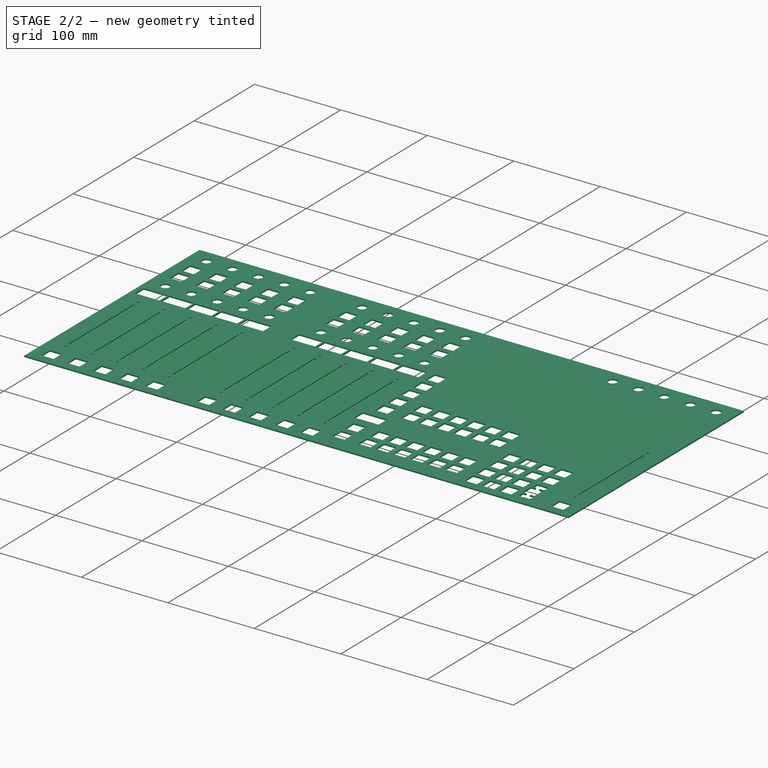
[diagram: stage 2 of 2 — iso view after this stage's code; geometry added in this stage tinted green]
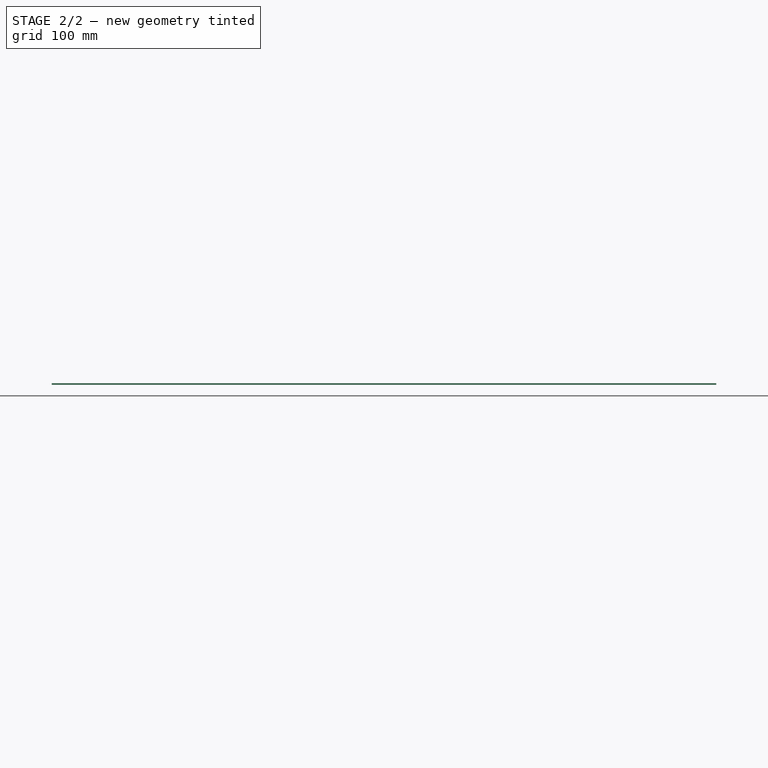
[diagram: stage 2 of 2 — front view after this stage's code; geometry added in this stage tinted green]
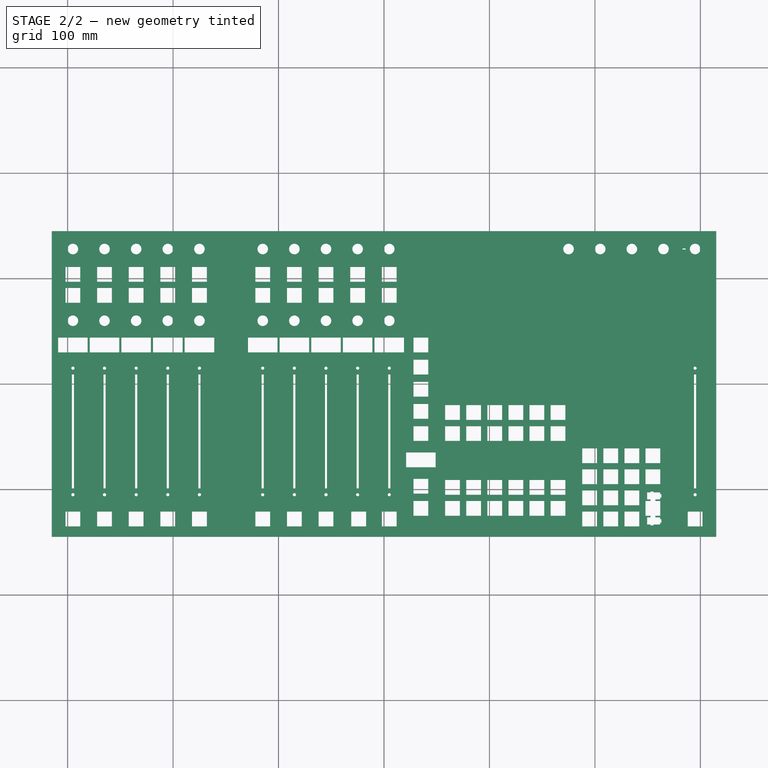
[diagram: stage 2 of 2 — top view after this stage's code; geometry added in this stage tinted green]
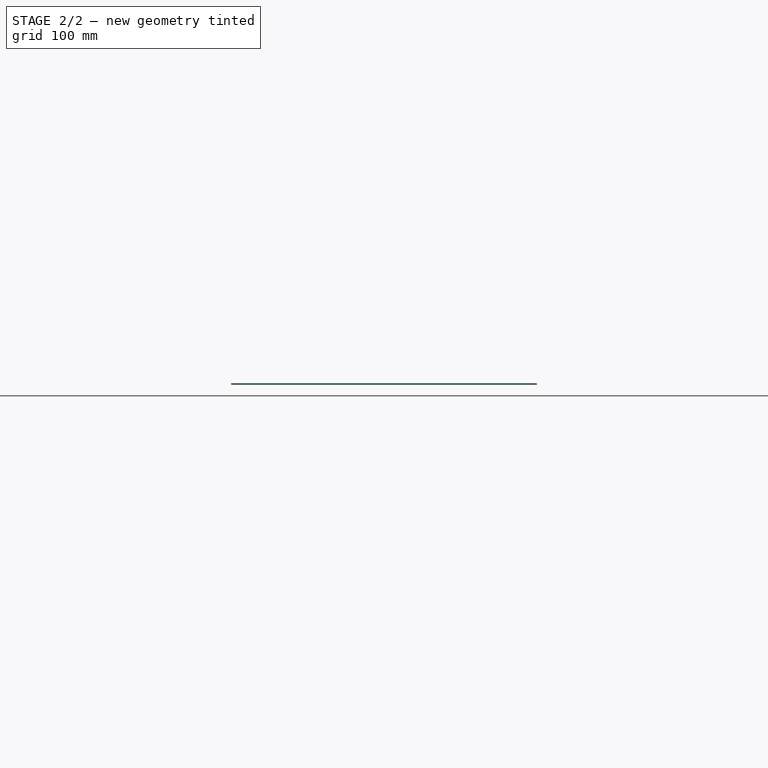
[diagram: stage 2 of 2 — right view after this stage's code; geometry added in this stage tinted green]
FEATURE [Sketcher::SketchObject] Sketch001  label="2u-key"
  FullyConstrained = false
  MapMode = 5
  Placement = pos=(0,0,1.5) rot=(0,0,1;0rad)
  Support = -> [Pad]
  sketch-geometry (36):
    g0: LineSegment StartX=248 StartY=-125 StartZ=0 EndX=248 EndY=-111 EndZ=0
    g1: LineSegment StartX=248 StartY=-111 StartZ=0 EndX=252.7 EndY=-111 EndZ=0
    g2: LineSegment StartX=252.7 StartY=-111 StartZ=0 EndX=252.7 EndY=-109.475 EndZ=0
    g3: LineSegment StartX=252.7 StartY=-109.475 StartZ=0 EndX=249.47 EndY=-109.475 EndZ=0
    g4: LineSegment StartX=249.47 StartY=-109.475 StartZ=0 EndX=249.47 EndY=-102.725 EndZ=0
    g5: LineSegment StartX=249.47 StartY=-102.725 StartZ=0 EndX=252.7 EndY=-102.725 EndZ=0
    g6: LineSegment StartX=252.7 StartY=-102.725 StartZ=0 EndX=252.7 EndY=-101.9 EndZ=0
    g7: LineSegment StartX=252.7 StartY=-101.9 StartZ=0 EndX=255.485 EndY=-101.9 EndZ=0
    g8: LineSegment StartX=255.485 StartY=-101.9 StartZ=0 EndX=255.485 EndY=-102.725 EndZ=0
    g9: LineSegment StartX=255.485 StartY=-102.725 StartZ=0 EndX=261.77 EndY=-102.725 EndZ=0
    g10: LineSegment StartX=261.77 StartY=-102.725 StartZ=0 EndX=261.77 EndY=-104.45 EndZ=0
    g11: LineSegment StartX=261.77 StartY=-104.45 StartZ=0 EndX=262.97 EndY=-104.45 EndZ=0
    g12: LineSegment StartX=262.97 StartY=-104.45 StartZ=0 EndX=262.97 EndY=-107.75 EndZ=0
    g13: LineSegment StartX=262.97 StartY=-107.75 StartZ=0 EndX=261.77 EndY=-107.75 EndZ=0
    g14: LineSegment StartX=261.77 StartY=-107.75 StartZ=0 EndX=261.77 EndY=-109.475 EndZ=0
    g15: LineSegment StartX=261.77 StartY=-109.475 StartZ=0 EndX=257.3 EndY=-109.475 EndZ=0
    g16: LineSegment StartX=257.3 StartY=-109.475 StartZ=0 EndX=257.3 EndY=-111 EndZ=0
    g17: LineSegment StartX=257.3 StartY=-111 StartZ=0 EndX=262 EndY=-111 EndZ=0
    g18: LineSegment StartX=262 StartY=-111 StartZ=0 EndX=262 EndY=-125 EndZ=0
    g19: LineSegment StartX=248 StartY=-125 StartZ=0 EndX=252.7 EndY=-125 EndZ=0
    g20: LineSegment StartX=252.7 StartY=-125 StartZ=0 EndX=252.7 EndY=-126.525 EndZ=0
    g21: LineSegment StartX=252.7 StartY=-126.525 StartZ=0 EndX=249.47 EndY=-126.525 EndZ=0
    g22: LineSegment StartX=262 StartY=-125 StartZ=0 EndX=257.3 EndY=-125 EndZ=0
    g23: LineSegment StartX=257.3 StartY=-125 StartZ=0 EndX=257.3 EndY=-126.525 EndZ=0
    g24: LineSegment StartX=257.3 StartY=-126.525 StartZ=0 EndX=261.77 EndY=-126.525 EndZ=0
    g25: LineSegment StartX=261.77 StartY=-126.525 StartZ=0 EndX=261.77 EndY=-128.25 EndZ=0
    g26: LineSegment StartX=261.77 StartY=-128.25 StartZ=0 EndX=262.97 EndY=-128.25 EndZ=0
    g27: LineSegment StartX=262.97 StartY=-128.25 StartZ=0 EndX=262.97 EndY=-131.55 EndZ=0
    g28: LineSegment StartX=262.97 StartY=-131.55 StartZ=0 EndX=261.77 EndY=-131.55 EndZ=0
    g29: LineSegment StartX=261.77 StartY=-133.275 StartZ=0 EndX=255.485 EndY=-133.275 EndZ=0
    g30: LineSegment StartX=255.485 StartY=-133.275 StartZ=0 EndX=255.485 EndY=-134.1 EndZ=0
    g31: LineSegment StartX=255.485 StartY=-134.1 StartZ=0 EndX=252.7 EndY=-134.1 EndZ=0
    g32: LineSegment StartX=252.7 StartY=-134.1 StartZ=0 EndX=252.7 EndY=-133.275 EndZ=0
    g33: LineSegment StartX=252.7 StartY=-133.275 StartZ=0 EndX=249.47 EndY=-133.275 EndZ=0
    g34: LineSegment StartX=249.47 StartY=-133.275 StartZ=0 EndX=249.47 EndY=-126.525 EndZ=0
    g35: LineSegment StartX=261.77 StartY=-131.55 StartZ=0 EndX=261.77 EndY=-133.275 EndZ=0
  constraints (106):
    c: Vertical(g0)
    c: Coincident(g1,g0)
    c: Horizontal(g1)
    c: Coincident(g2,g1)
    c: Coincident(g3,g2)
    c: Horizontal(g3)
    c: Coincident(g4,g3)
    c: Vertical(g4)
    c: Coincident(g5,g4)
    c: Horizontal(g5)
    c: Coincident(g6,g5)
    c: Coincident(g7,g6)
    c: Coincident(g8,g7)
    c: Coincident(g9,g8)
    c: Horizontal(g9)
    c: Coincident(g10,g9)
    c: Coincident(g11,g10)
    c: Horizontal(g11)
    c: Coincident(g12,g11)
    c: Coincident(g13,g12)
    c: Equal(g11,g13)
    c: Equal(g8,g6)
    c: Parallel(g6,g8)
    c: Parallel(g11,g13)
    c: Perpendicular(g7,g6)
    c: Perpendicular(g5,g6)
    c: Perpendicular(g10,g9)
    c: Parallel(g10,g12)
    c: Perpendicular(g2,g3)
    c: Equal(g3,g5)
    c: DistanceX(g5,g5) = 3.23
    c: DistanceY(g6,g6) = 0.825
    c: DistanceX(g7,g7) = 2.785
    c: DistanceY(g4,g4) = 6.75
    c: DistanceY(g2,g2) = 1.525
    c: DistanceX(g1,g1) = 4.7
    c: DistanceX(g9,g9) = 6.285
    c: Coincident(g14,g13)
    c: Vertical(g14)
    c: Coincident(g15,g14)
    c: Horizontal(g15)
    c: Coincident(g16,g15)
    c: Vertical(g16)
    c: Coincident(g17,g16)
    c: Equal(g10,g14)
    c: DistanceY(g10,g10) = 1.725
    c: DistanceX(g11,g11) = 1.2
    c: DistanceY(g12,g12) = 3.3
    c: Equal(g2,g16)
    c: Parallel(g15,g17)
    c: DistanceX(g15,g15) = 4.47
    c: DistanceX(g17,g17) = 4.7
    c: DistanceY(g0,g0) = 14
    c: Coincident(g18,g17)
    c: Vertical(g18)
    c: Equal(g18,g0)
    c: Coincident(g19,g0)
    c: Horizontal(g19)
    c: Coincident(g20,g19)
    c: Coincident(g21,g20)
    c: Horizontal(g21)
    c: Coincident(g22,g18)
    c: Horizontal(g22)
    c: Coincident(g23,g22)
    c: Vertical(g23)
    c: Coincident(g24,g23)
    c: Horizontal(g24)
    c: Equal(g20,g23)
    c: Equal(g20,g2)
    c: Equal(g19,g1)
    c: Equal(g22,g17)
    c: Perpendicular(g19,g20)
    c: Equal(g3,g21)
    c: Equal(g15,g24)
    c: Coincident(g25,g24)
    c: Vertical(g25)
    c: Coincident(g26,g25)
    c: Coincident(g27,g26)
    c: Coincident(g28,g27)
    c: Horizontal(g28)
    c: Horizontal(g29)
    c: Coincident(g30,g29)
    c: Vertical(g30)
    c: Coincident(g31,g30)
    c: Horizontal(g31)
    c: Coincident(g32,g31)
    c: Coincident(g33,g32)
    c: Horizontal(g33)
    c: Coincident(g34,g33)
    c: Coincident(g34,g21)
    c: Equal(g4,g34)
    c: Equal(g33,g5)
    c: Equal(g7,g31)
    c: Perpendicular(g34,g21)
    c: Equal(g25,g14)
    c: Equal(g26,g28)
    c: Equal(g26,g13)
    c: Coincident(g35,g28)
    c: Coincident(g35,g29)
    c: Perpendicular(g25,g26)
    c: Perpendicular(g26,g27)
    c: Equal(g27,g12)
    c: Equal(g35,g10)
    c: Perpendicular(g35,g28)
    c: Equal(g29,g9)
    c: Equal(g30,g8)
FEATURE [PartDesign::Pocket] Pocket
  BaseFeature = -> Pad
  Direction = (0,0,-1)
  Length = 1.5
  Length2 = 5
  Profile = -> Sketch001
  ReferenceAxis = -> Sketch001 [N_Axis]
  Type = 0
FEATURE [PartDesign::Body] Body
  Group = -> [Sketch,Pad,Sketch001,Pocket]
  Origin = -> Origin
  Tip = -> Pocket
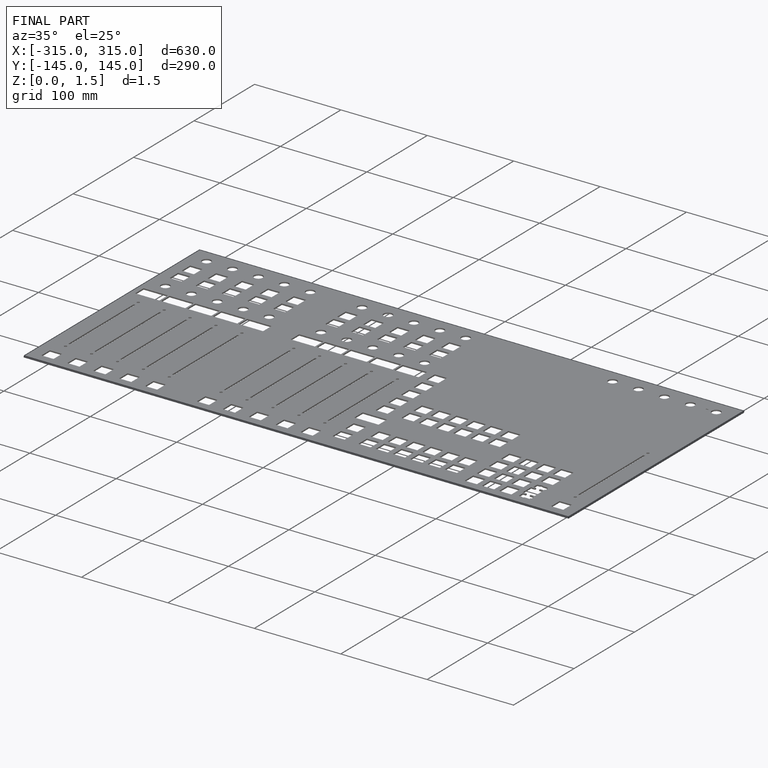
[diagram: finished part — iso view with bounding-box wireframe]
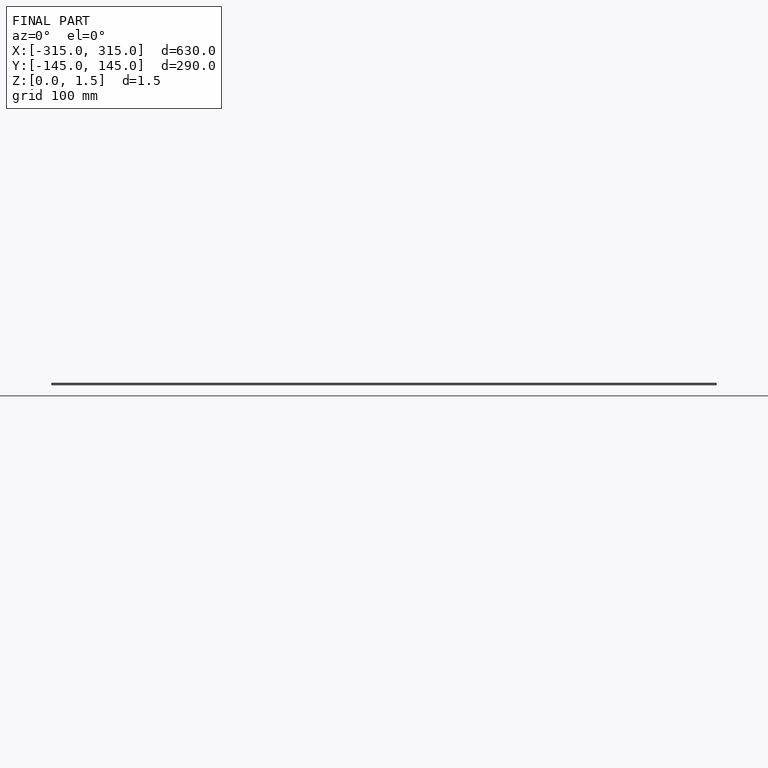
[diagram: finished part — front view with bounding-box wireframe]
